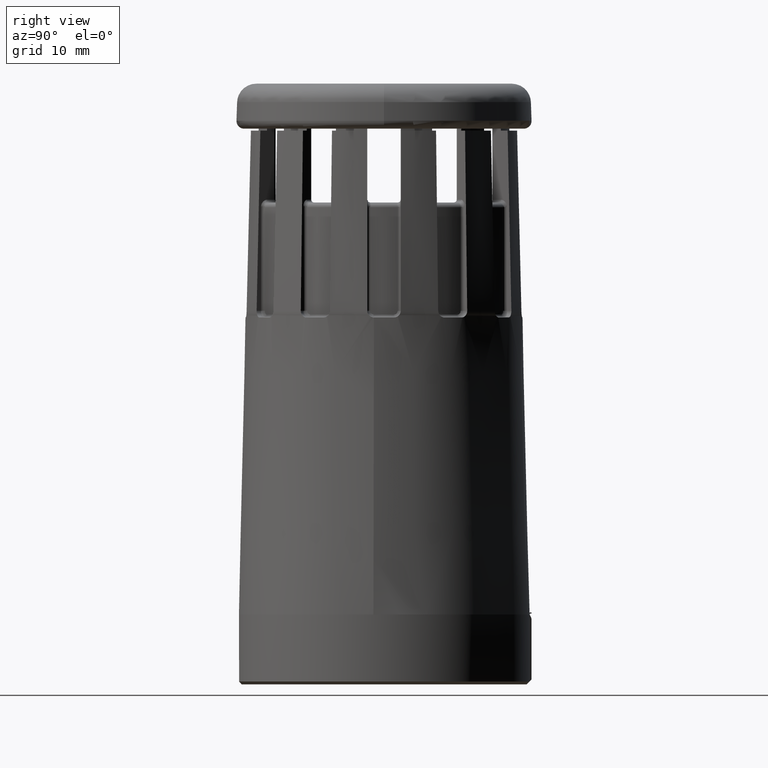
[diagram: clean part render]
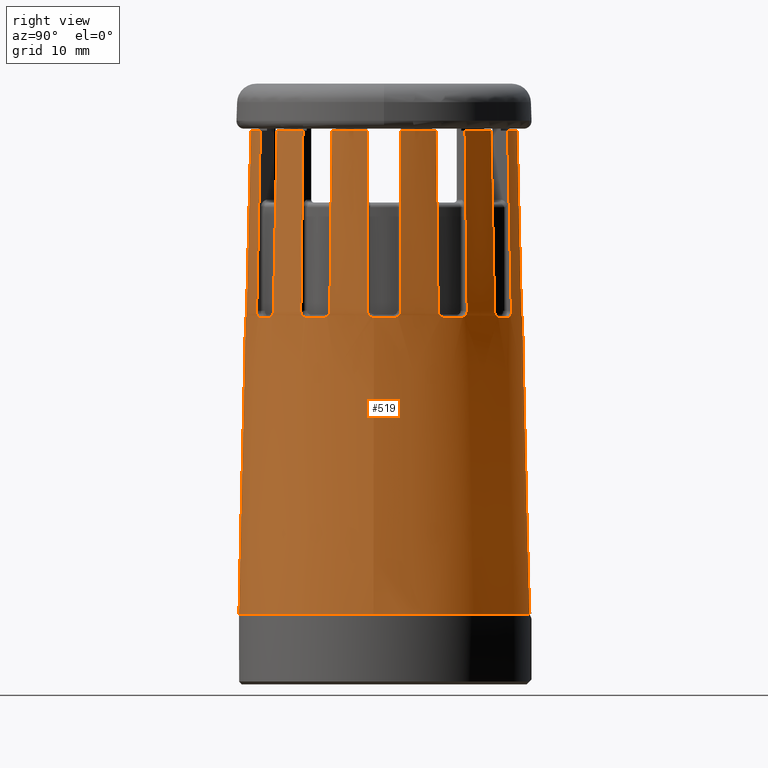
[diagram: same view with one face highlighted and labeled with its STEP entity id]
A machine part, right view. The second image highlights one B-rep face of the part: STEP entity #519.
In plain terms, the highlighted conical surface has half-angle 1.361 deg.
Its self-contained STEP definition (entity closure, byte-faithful):
#102=FACE_BOUND('',#1437,.T.);
#103=FACE_BOUND('',#1438,.T.);
#212=CONICAL_SURFACE('',#7414,14.6,1.36091757551645);
#319=(
BOUNDED_CURVE()
B_SPLINE_CURVE(2,(#10048,#10049,#10050),.UNSPECIFIED.,.F.,.F.)
B_SPLINE_CURVE_WITH_KNOTS((3,3),(0.,1.),.UNSPECIFIED.)
CURVE()
GEOMETRIC_REPRESENTATION_ITEM()
RATIONAL_B_SPLINE_CURVE((1.0000091687258,1.00012975879572,1.))
REPRESENTATION_ITEM('')
);
#320=(
BOUNDED_CURVE()
B_SPLINE_CURVE(2,(#10098,#10099,#10100),.UNSPECIFIED.,.F.,.F.)
B_SPLINE_CURVE_WITH_KNOTS((3,3),(0.,1.),.UNSPECIFIED.)
CURVE()
GEOMETRIC_REPRESENTATION_ITEM()
RATIONAL_B_SPLINE_CURVE((1.,1.00012975870704,1.00000916871954))
REPRESENTATION_ITEM('')
);
#323=(
BOUNDED_CURVE()
B_SPLINE_CURVE(2,(#10123,#10124,#10125),.UNSPECIFIED.,.F.,.F.)
B_SPLINE_CURVE_WITH_KNOTS((3,3),(0.,1.),.UNSPECIFIED.)
CURVE()
GEOMETRIC_REPRESENTATION_ITEM()
RATIONAL_B_SPLINE_CURVE((1.00000916872432,1.00012975877479,1.))
REPRESENTATION_ITEM('')
);
#324=(
BOUNDED_CURVE()
B_SPLINE_CURVE(2,(#10173,#10174,#10175),.UNSPECIFIED.,.F.,.F.)
B_SPLINE_CURVE_WITH_KNOTS((3,3),(0.,1.),.UNSPECIFIED.)
CURVE()
GEOMETRIC_REPRESENTATION_ITEM()
RATIONAL_B_SPLINE_CURVE((1.,1.00012975907931,1.00000916874584))
REPRESENTATION_ITEM('')
);
#327=(
BOUNDED_CURVE()
B_SPLINE_CURVE(2,(#10198,#10199,#10200),.UNSPECIFIED.,.F.,.F.)
B_SPLINE_CURVE_WITH_KNOTS((3,3),(0.,1.),.UNSPECIFIED.)
CURVE()
GEOMETRIC_REPRESENTATION_ITEM()
RATIONAL_B_SPLINE_CURVE((1.00000916872858,1.00012975883499,1.))
REPRESENTATION_ITEM('')
);
#328=(
BOUNDED_CURVE()
B_SPLINE_CURVE(2,(#10248,#10249,#10250),.UNSPECIFIED.,.F.,.F.)
B_SPLINE_CURVE_WITH_KNOTS((3,3),(0.,1.),.UNSPECIFIED.)
CURVE()
GEOMETRIC_REPRESENTATION_ITEM()
RATIONAL_B_SPLINE_CURVE((1.,1.00012975869552,1.00000916871872))
REPRESENTATION_ITEM('')
);
#331=(
BOUNDED_CURVE()
B_SPLINE_CURVE(2,(#10273,#10274,#10275),.UNSPECIFIED.,.F.,.F.)
B_SPLINE_CURVE_WITH_KNOTS((3,3),(0.,1.),.UNSPECIFIED.)
CURVE()
GEOMETRIC_REPRESENTATION_ITEM()
RATIONAL_B_SPLINE_CURVE((1.00000916871946,1.000129758706,1.))
REPRESENTATION_ITEM('')
);
#332=(
BOUNDED_CURVE()
B_SPLINE_CURVE(2,(#10323,#10324,#10325),.UNSPECIFIED.,.F.,.F.)
B_SPLINE_CURVE_WITH_KNOTS((3,3),(0.,1.),.UNSPECIFIED.)
CURVE()
GEOMETRIC_REPRESENTATION_ITEM()
RATIONAL_B_SPLINE_CURVE((1.,1.00012975886799,1.00000916873091))
REPRESENTATION_ITEM('')
);
#335=(
BOUNDED_CURVE()
B_SPLINE_CURVE(2,(#10348,#10349,#10350),.UNSPECIFIED.,.F.,.F.)
B_SPLINE_CURVE_WITH_KNOTS((3,3),(0.,1.),.UNSPECIFIED.)
CURVE()
GEOMETRIC_REPRESENTATION_ITEM()
RATIONAL_B_SPLINE_CURVE((1.00000916874068,1.00012975900624,1.))
REPRESENTATION_ITEM('')
);
#336=(
BOUNDED_CURVE()
B_SPLINE_CURVE(2,(#10398,#10399,#10400),.UNSPECIFIED.,.F.,.F.)
B_SPLINE_CURVE_WITH_KNOTS((3,3),(0.,1.),.UNSPECIFIED.)
CURVE()
GEOMETRIC_REPRESENTATION_ITEM()
RATIONAL_B_SPLINE_CURVE((1.,1.0001297589489,1.00000916873662))
REPRESENTATION_ITEM('')
);
#339=(
BOUNDED_CURVE()
B_SPLINE_CURVE(2,(#10423,#10424,#10425),.UNSPECIFIED.,.F.,.F.)
B_SPLINE_CURVE_WITH_KNOTS((3,3),(0.,1.),.UNSPECIFIED.)
CURVE()
GEOMETRIC_REPRESENTATION_ITEM()
RATIONAL_B_SPLINE_CURVE((1.00000916872947,1.0001297588476,1.))
REPRESENTATION_ITEM('')
);
#340=(
BOUNDED_CURVE()
B_SPLINE_CURVE(2,(#10473,#10474,#10475),.UNSPECIFIED.,.F.,.F.)
B_SPLINE_CURVE_WITH_KNOTS((3,3),(0.,1.),.UNSPECIFIED.)
CURVE()
GEOMETRIC_REPRESENTATION_ITEM()
RATIONAL_B_SPLINE_CURVE((1.,1.00012975875833,1.00000916872316))
REPRESENTATION_ITEM('')
);
#343=(
BOUNDED_CURVE()
B_SPLINE_CURVE(2,(#10498,#10499,#10500),.UNSPECIFIED.,.F.,.F.)
B_SPLINE_CURVE_WITH_KNOTS((3,3),(0.,1.),.UNSPECIFIED.)
CURVE()
GEOMETRIC_REPRESENTATION_ITEM()
RATIONAL_B_SPLINE_CURVE((1.00000916871947,1.00012975870608,1.))
REPRESENTATION_ITEM('')
);
#345=(
BOUNDED_CURVE()
B_SPLINE_CURVE(2,(#10534,#10535,#10536),.UNSPECIFIED.,.F.,.F.)
B_SPLINE_CURVE_WITH_KNOTS((3,3),(0.,1.),.UNSPECIFIED.)
CURVE()
GEOMETRIC_REPRESENTATION_ITEM()
RATIONAL_B_SPLINE_CURVE((1.00000916873088,1.0001297588676,1.))
REPRESENTATION_ITEM('')
);
#346=(
BOUNDED_CURVE()
B_SPLINE_CURVE(2,(#10581,#10582,#10583),.UNSPECIFIED.,.F.,.F.)
B_SPLINE_CURVE_WITH_KNOTS((3,3),(0.,1.),.UNSPECIFIED.)
CURVE()
GEOMETRIC_REPRESENTATION_ITEM()
RATIONAL_B_SPLINE_CURVE((1.,1.00012975876864,1.00000916872389))
REPRESENTATION_ITEM('')
);
#349=(
BOUNDED_CURVE()
B_SPLINE_CURVE(2,(#10606,#10607,#10608),.UNSPECIFIED.,.F.,.F.)
B_SPLINE_CURVE_WITH_KNOTS((3,3),(0.,1.),.UNSPECIFIED.)
CURVE()
GEOMETRIC_REPRESENTATION_ITEM()
RATIONAL_B_SPLINE_CURVE((1.00000916873123,1.00012975887258,1.))
REPRESENTATION_ITEM('')
);
#350=(
BOUNDED_CURVE()
B_SPLINE_CURVE(2,(#10653,#10654,#10655),.UNSPECIFIED.,.F.,.F.)
B_SPLINE_CURVE_WITH_KNOTS((3,3),(0.,1.),.UNSPECIFIED.)
CURVE()
GEOMETRIC_REPRESENTATION_ITEM()
RATIONAL_B_SPLINE_CURVE((1.,1.00012975879558,1.00000916872579))
REPRESENTATION_ITEM('')
);
#353=(
BOUNDED_CURVE()
B_SPLINE_CURVE(2,(#10678,#10679,#10680),.UNSPECIFIED.,.F.,.F.)
B_SPLINE_CURVE_WITH_KNOTS((3,3),(0.,1.),.UNSPECIFIED.)
CURVE()
GEOMETRIC_REPRESENTATION_ITEM()
RATIONAL_B_SPLINE_CURVE((1.00000916873484,1.0001297589237,1.))
REPRESENTATION_ITEM('')
);
#354=(
BOUNDED_CURVE()
B_SPLINE_CURVE(2,(#10725,#10726,#10727),.UNSPECIFIED.,.F.,.F.)
B_SPLINE_CURVE_WITH_KNOTS((3,3),(0.,1.),.UNSPECIFIED.)
CURVE()
GEOMETRIC_REPRESENTATION_ITEM()
RATIONAL_B_SPLINE_CURVE((1.,1.0001297586685,1.00000916871681))
REPRESENTATION_ITEM('')
);
#357=(
BOUNDED_CURVE()
B_SPLINE_CURVE(2,(#10750,#10751,#10752),.UNSPECIFIED.,.F.,.F.)
B_SPLINE_CURVE_WITH_KNOTS((3,3),(0.,1.),.UNSPECIFIED.)
CURVE()
GEOMETRIC_REPRESENTATION_ITEM()
RATIONAL_B_SPLINE_CURVE((1.00000916871922,1.0001297587026,1.))
REPRESENTATION_ITEM('')
);
#359=(
BOUNDED_CURVE()
B_SPLINE_CURVE(2,(#10786,#10787,#10788),.UNSPECIFIED.,.F.,.F.)
B_SPLINE_CURVE_WITH_KNOTS((3,3),(0.,1.),.UNSPECIFIED.)
CURVE()
GEOMETRIC_REPRESENTATION_ITEM()
RATIONAL_B_SPLINE_CURVE((1.00000916872675,1.00012975880921,1.))
REPRESENTATION_ITEM('')
);
#360=(
BOUNDED_CURVE()
B_SPLINE_CURVE(2,(#10833,#10834,#10835),.UNSPECIFIED.,.F.,.F.)
B_SPLINE_CURVE_WITH_KNOTS((3,3),(0.,1.),.UNSPECIFIED.)
CURVE()
GEOMETRIC_REPRESENTATION_ITEM()
RATIONAL_B_SPLINE_CURVE((1.,1.00012975865547,1.00000916871589))
REPRESENTATION_ITEM('')
);
#388=(
BOUNDED_CURVE()
B_SPLINE_CURVE(2,(#11568,#11569,#11570),.UNSPECIFIED.,.F.,.F.)
B_SPLINE_CURVE_WITH_KNOTS((3,3),(0.,1.),.UNSPECIFIED.)
CURVE()
GEOMETRIC_REPRESENTATION_ITEM()
RATIONAL_B_SPLINE_CURVE((1.,1.00012975892844,1.00000916873518))
REPRESENTATION_ITEM('')
);
#389=(
BOUNDED_CURVE()
B_SPLINE_CURVE(2,(#11599,#11600,#11601),.UNSPECIFIED.,.F.,.F.)
B_SPLINE_CURVE_WITH_KNOTS((3,3),(0.,1.),.UNSPECIFIED.)
CURVE()
GEOMETRIC_REPRESENTATION_ITEM()
RATIONAL_B_SPLINE_CURVE((1.,1.00012975863052,1.00000916871413))
REPRESENTATION_ITEM('')
);
#519=ADVANCED_FACE('',(#102,#103),#212,.T.);
#1437=EDGE_LOOP('',(#3097,#3098));
#1438=EDGE_LOOP('',(#3099,#3100,#3101,#3102,#3103,#3104,#3105,#3106,#3107,
#3108,#3109,#3110,#3111,#3112,#3113,#3114,#3115,#3116,#3117,#3118,#3119,
#3120,#3121,#3122,#3123,#3124,#3125,#3126,#3127,#3128,#3129,#3130,#3131,
#3132,#3133,#3134,#3135,#3136,#3137,#3138,#3139,#3140,#3141,#3142,#3143,
#3144,#3145,#3146,#3147,#3148,#3149,#3150,#3151,#3152,#3153,#3154,#3155,
#3156,#3157,#3158,#3159,#3160,#3161,#3162,#3163,#3164,#3165,#3166,#3167,
#3168,#3169,#3170));
#1826=CIRCLE('',#7382,15.2);
#1827=CIRCLE('',#7389,15.2);
#1828=CIRCLE('',#7390,14.4632607287788);
#1829=CIRCLE('',#7391,14.);
#1830=CIRCLE('',#7392,14.4632607287788);
#1831=CIRCLE('',#7393,14.);
#1832=CIRCLE('',#7394,14.4632607287788);
#1833=CIRCLE('',#7395,14.);
#1834=CIRCLE('',#7396,14.4632607287788);
#1835=CIRCLE('',#7397,14.);
#1836=CIRCLE('',#7398,14.4632607287788);
#1837=CIRCLE('',#7399,14.);
#1838=CIRCLE('',#7400,14.4632607287788);
#1839=CIRCLE('',#7401,14.);
#1840=CIRCLE('',#7402,14.4632607287788);
#1841=CIRCLE('',#7403,14.);
#1842=CIRCLE('',#7404,14.4632607287788);
#1843=CIRCLE('',#7405,14.);
#1844=CIRCLE('',#7406,14.4632607287788);
#1845=CIRCLE('',#7407,14.);
#1846=CIRCLE('',#7408,14.4632607287788);
#1847=CIRCLE('',#7409,14.);
#1848=CIRCLE('',#7410,14.4632607287788);
#1849=CIRCLE('',#7411,14.);
#1850=CIRCLE('',#7412,14.4632607287788);
#1851=CIRCLE('',#7413,14.);
#2148=B_SPLINE_CURVE_WITH_KNOTS('',3,(#11690,#11691,#11692,#11693,#11694,
#11695,#11696,#11697,#11698,#11699,#11700,#11701,#11702,#11703,#11704,#11705,
#11706,#11707,#11708),.UNSPECIFIED.,.F.,.F.,(4,3,3,3,3,3,4),(0.,0.213835099467739,
0.427594788446864,0.499517273520278,0.715732940413993,0.931966233927127,
1.),.UNSPECIFIED.);
#2153=B_SPLINE_CURVE_WITH_KNOTS('',3,(#11750,#11751,#11752,#11753,#11754,
#11755,#11756,#11757,#11758,#11759,#11760,#11761,#11762,#11763,#11764,#11765,
#11766,#11767,#11768),.UNSPECIFIED.,.F.,.F.,(4,3,3,3,3,3,4),(0.,0.215746337173847,
0.431449424683527,0.500450815619938,0.715471633319199,0.930571949269777,
1.),.UNSPECIFIED.);
#2154=B_SPLINE_CURVE_WITH_KNOTS('',3,(#11770,#11771,#11772,#11773,#11774,
#11775,#11776,#11777,#11778,#11779,#11780,#11781,#11782,#11783,#11784,#11785,
#11786,#11787,#11788),.UNSPECIFIED.,.F.,.F.,(4,3,3,3,3,3,4),(0.,0.213835099467736,
0.427594788446864,0.499517273520275,0.715732940413992,0.931966233927124,
1.),.UNSPECIFIED.);
#2159=B_SPLINE_CURVE_WITH_KNOTS('',3,(#11830,#11831,#11832,#11833,#11834,
#11835,#11836,#11837,#11838,#11839,#11840,#11841,#11842,#11843,#11844,#11845,
#11846,#11847,#11848),.UNSPECIFIED.,.F.,.F.,(4,3,3,3,3,3,4),(0.,0.215746337173846,
0.431449424683529,0.500450815619941,0.7154716333192,0.930571949269776,1.),
 .UNSPECIFIED.);
#2160=B_SPLINE_CURVE_WITH_KNOTS('',3,(#11854,#11855,#11856,#11857,#11858,
#11859,#11860,#11861,#11862,#11863,#11864,#11865,#11866,#11867,#11868,#11869,
#11870,#11871,#11872),.UNSPECIFIED.,.F.,.F.,(4,3,3,3,3,3,4),(0.,0.213835099467739,
0.427594788446864,0.499517273520276,0.715732940413993,0.931966233927126,
1.),.UNSPECIFIED.);
#2161=B_SPLINE_CURVE_WITH_KNOTS('',3,(#11874,#11875,#11876,#11877,#11878,
#11879,#11880,#11881,#11882,#11883,#11884,#11885,#11886,#11887,#11888,#11889,
#11890,#11891,#11892),.UNSPECIFIED.,.F.,.F.,(4,3,3,3,3,3,4),(0.,0.215746337173846,
0.431449424683528,0.50045081561994,0.715471633319201,0.93057194926978,1.),
 .UNSPECIFIED.);
#2162=B_SPLINE_CURVE_WITH_KNOTS('',3,(#11896,#11897,#11898,#11899,#11900,
#11901,#11902,#11903,#11904,#11905,#11906,#11907,#11908,#11909,#11910,#11911,
#11912,#11913,#11914),.UNSPECIFIED.,.F.,.F.,(4,3,3,3,3,3,4),(0.,0.21383509946774,
0.427594788446866,0.49951727352028,0.715732940413994,0.931966233927128,
1.),.UNSPECIFIED.);
#2163=B_SPLINE_CURVE_WITH_KNOTS('',3,(#11920,#11921,#11922,#11923,#11924,
#11925,#11926,#11927,#11928,#11929,#11930,#11931,#11932,#11933,#11934,#11935,
#11936,#11937,#11938),.UNSPECIFIED.,.F.,.F.,(4,3,3,3,3,3,4),(0.,0.215746337173847,
0.431449424683528,0.500450815619938,0.7154716333192,0.930571949269776,1.),
 .UNSPECIFIED.);
#2164=B_SPLINE_CURVE_WITH_KNOTS('',3,(#11942,#11943,#11944,#11945,#11946,
#11947,#11948,#11949,#11950,#11951,#11952,#11953,#11954,#11955,#11956,#11957,
#11958,#11959,#11960),.UNSPECIFIED.,.F.,.F.,(4,3,3,3,3,3,4),(0.,0.213835099467738,
0.427594788446862,0.499517273520276,0.715732940413991,0.931966233927124,
1.),.UNSPECIFIED.);
#2165=B_SPLINE_CURVE_WITH_KNOTS('',3,(#11962,#11963,#11964,#11965,#11966,
#11967,#11968,#11969,#11970,#11971,#11972,#11973,#11974,#11975,#11976,#11977,
#11978,#11979,#11980),.UNSPECIFIED.,.F.,.F.,(4,3,3,3,3,3,4),(0.,0.215746337173848,
0.43144942468353,0.500450815619944,0.715471633319206,0.930571949269779,
1.),.UNSPECIFIED.);
#2166=B_SPLINE_CURVE_WITH_KNOTS('',3,(#11984,#11985,#11986,#11987,#11988,
#11989,#11990,#11991,#11992,#11993,#11994,#11995,#11996,#11997,#11998,#11999,
#12000,#12001,#12002),.UNSPECIFIED.,.F.,.F.,(4,3,3,3,3,3,4),(0.,0.213835099467739,
0.427594788446864,0.499517273520275,0.715732940413993,0.931966233927125,
1.),.UNSPECIFIED.);
#2167=B_SPLINE_CURVE_WITH_KNOTS('',3,(#12004,#12005,#12006,#12007,#12008,
#12009,#12010,#12011,#12012,#12013,#12014,#12015,#12016,#12017,#12018,#12019,
#12020,#12021,#12022),.UNSPECIFIED.,.F.,.F.,(4,3,3,3,3,3,4),(0.,0.215746337173844,
0.431449424683525,0.500450815619941,0.7154716333192,0.930571949269779,1.),
 .UNSPECIFIED.);
#2168=B_SPLINE_CURVE_WITH_KNOTS('',3,(#12026,#12027,#12028,#12029,#12030,
#12031,#12032,#12033,#12034,#12035,#12036,#12037,#12038,#12039,#12040,#12041,
#12042,#12043,#12044),.UNSPECIFIED.,.F.,.F.,(4,3,3,3,3,3,4),(0.,0.213835099467736,
0.427594788446862,0.499517273520275,0.715732940413992,0.931966233927126,
1.),.UNSPECIFIED.);
#2169=B_SPLINE_CURVE_WITH_KNOTS('',3,(#12046,#12047,#12048,#12049,#12050,
#12051,#12052,#12053,#12054,#12055,#12056,#12057,#12058,#12059,#12060,#12061,
#12062,#12063,#12064),.UNSPECIFIED.,.F.,.F.,(4,3,3,3,3,3,4),(0.,0.215746337173878,
0.431449424683591,0.500450815620014,0.715471633319537,0.930571949270404,
1.),.UNSPECIFIED.);
#2170=B_SPLINE_CURVE_WITH_KNOTS('',3,(#12068,#12069,#12070,#12071,#12072,
#12073,#12074,#12075,#12076,#12077,#12078,#12079,#12080,#12081,#12082,#12083,
#12084,#12085,#12086),.UNSPECIFIED.,.F.,.F.,(4,3,3,3,3,3,4),(0.,0.213835099467738,
0.427594788446863,0.499517273520279,0.715732940413992,0.931966233927125,
1.),.UNSPECIFIED.);
#2171=B_SPLINE_CURVE_WITH_KNOTS('',3,(#12088,#12089,#12090,#12091,#12092,
#12093,#12094,#12095,#12096,#12097,#12098,#12099,#12100,#12101,#12102,#12103,
#12104,#12105,#12106),.UNSPECIFIED.,.F.,.F.,(4,3,3,3,3,3,4),(0.,0.215746337173846,
0.43144942468353,0.500450815619939,0.715471633319203,0.930571949269779,
1.),.UNSPECIFIED.);
#2172=B_SPLINE_CURVE_WITH_KNOTS('',3,(#12110,#12111,#12112,#12113,#12114,
#12115,#12116,#12117,#12118,#12119,#12120,#12121,#12122,#12123,#12124,#12125,
#12126,#12127,#12128),.UNSPECIFIED.,.F.,.F.,(4,3,3,3,3,3,4),(0.,0.213835099467739,
0.427594788446865,0.499517273520278,0.715732940413995,0.931966233927128,
1.),.UNSPECIFIED.);
#2173=B_SPLINE_CURVE_WITH_KNOTS('',3,(#12130,#12131,#12132,#12133,#12134,
#12135,#12136,#12137,#12138,#12139,#12140,#12141,#12142,#12143,#12144,#12145,
#12146,#12147,#12148),.UNSPECIFIED.,.F.,.F.,(4,3,3,3,3,3,4),(0.,0.215746337173846,
0.431449424683527,0.500450815619938,0.7154716333192,0.930571949269776,1.),
 .UNSPECIFIED.);
#2174=B_SPLINE_CURVE_WITH_KNOTS('',3,(#12152,#12153,#12154,#12155,#12156,
#12157,#12158,#12159,#12160,#12161,#12162,#12163,#12164,#12165,#12166,#12167,
#12168,#12169,#12170),.UNSPECIFIED.,.F.,.F.,(4,3,3,3,3,3,4),(0.,0.213835099467739,
0.427594788446864,0.499517273520277,0.715732940413992,0.931966233927124,
1.),.UNSPECIFIED.);
#2175=B_SPLINE_CURVE_WITH_KNOTS('',3,(#12172,#12173,#12174,#12175,#12176,
#12177,#12178,#12179,#12180,#12181,#12182,#12183,#12184,#12185,#12186,#12187,
#12188,#12189,#12190),.UNSPECIFIED.,.F.,.F.,(4,3,3,3,3,3,4),(0.,0.215746337173878,
0.431449424683592,0.500450815620016,0.715471633319537,0.930571949270403,
1.),.UNSPECIFIED.);
#2176=B_SPLINE_CURVE_WITH_KNOTS('',3,(#12194,#12195,#12196,#12197,#12198,
#12199,#12200,#12201,#12202,#12203,#12204,#12205,#12206,#12207,#12208,#12209,
#12210,#12211,#12212),.UNSPECIFIED.,.F.,.F.,(4,3,3,3,3,3,4),(0.,0.213835099467736,
0.427594788446863,0.499517273520276,0.715732940413991,0.931966233927122,
1.),.UNSPECIFIED.);
#2177=B_SPLINE_CURVE_WITH_KNOTS('',3,(#12214,#12215,#12216,#12217,#12218,
#12219,#12220,#12221,#12222,#12223,#12224,#12225,#12226,#12227,#12228,#12229,
#12230,#12231,#12232),.UNSPECIFIED.,.F.,.F.,(4,3,3,3,3,3,4),(0.,0.215746337173843,
0.431449424683526,0.500450815619939,0.715471633319199,0.930571949269779,
1.),.UNSPECIFIED.);
#2178=B_SPLINE_CURVE_WITH_KNOTS('',3,(#12236,#12237,#12238,#12239,#12240,
#12241,#12242,#12243,#12244,#12245,#12246,#12247,#12248,#12249,#12250,#12251,
#12252,#12253,#12254),.UNSPECIFIED.,.F.,.F.,(4,3,3,3,3,3,4),(0.,0.213835099467706,
0.427594788446798,0.499517273520199,0.715732940413645,0.931966233926481,
1.),.UNSPECIFIED.);
#2179=B_SPLINE_CURVE_WITH_KNOTS('',3,(#12256,#12257,#12258,#12259,#12260,
#12261,#12262,#12263,#12264,#12265,#12266,#12267,#12268,#12269,#12270,#12271,
#12272,#12273,#12274),.UNSPECIFIED.,.F.,.F.,(4,3,3,3,3,3,4),(0.,0.215746337173845,
0.431449424683527,0.500450815619939,0.715471633319199,0.930571949269776,
1.),.UNSPECIFIED.);
#3097=ORIENTED_EDGE('',*,*,#5910,.F.);
#3098=ORIENTED_EDGE('',*,*,#5929,.F.);
#3099=ORIENTED_EDGE('',*,*,#5930,.T.);
#3100=ORIENTED_EDGE('',*,*,#5931,.F.);
#3101=ORIENTED_EDGE('',*,*,#5671,.T.);
#3102=ORIENTED_EDGE('',*,*,#5932,.T.);
#3103=ORIENTED_EDGE('',*,*,#5887,.T.);
#3104=ORIENTED_EDGE('',*,*,#5933,.F.);
#3105=ORIENTED_EDGE('',*,*,#5934,.T.);
#3106=ORIENTED_EDGE('',*,*,#5935,.F.);
#3107=ORIENTED_EDGE('',*,*,#5689,.T.);
#3108=ORIENTED_EDGE('',*,*,#5936,.T.);
#3109=ORIENTED_EDGE('',*,*,#5895,.T.);
#3110=ORIENTED_EDGE('',*,*,#5928,.F.);
#3111=ORIENTED_EDGE('',*,*,#5937,.T.);
#3112=ORIENTED_EDGE('',*,*,#5921,.F.);
#3113=ORIENTED_EDGE('',*,*,#5698,.T.);
#3114=ORIENTED_EDGE('',*,*,#5938,.T.);
#3115=ORIENTED_EDGE('',*,*,#5708,.T.);
#3116=ORIENTED_EDGE('',*,*,#5920,.F.);
#3117=ORIENTED_EDGE('',*,*,#5939,.T.);
#3118=ORIENTED_EDGE('',*,*,#5913,.F.);
#3119=ORIENTED_EDGE('',*,*,#5506,.T.);
#3120=ORIENTED_EDGE('',*,*,#5940,.T.);
#3121=ORIENTED_EDGE('',*,*,#5518,.T.);
#3122=ORIENTED_EDGE('',*,*,#5941,.F.);
#3123=ORIENTED_EDGE('',*,*,#5942,.T.);
#3124=ORIENTED_EDGE('',*,*,#5943,.F.);
#3125=ORIENTED_EDGE('',*,*,#5526,.T.);
#3126=ORIENTED_EDGE('',*,*,#5944,.T.);
#3127=ORIENTED_EDGE('',*,*,#5538,.T.);
#3128=ORIENTED_EDGE('',*,*,#5945,.F.);
#3129=ORIENTED_EDGE('',*,*,#5946,.T.);
#3130=ORIENTED_EDGE('',*,*,#5947,.F.);
#3131=ORIENTED_EDGE('',*,*,#5546,.T.);
#3132=ORIENTED_EDGE('',*,*,#5948,.T.);
#3133=ORIENTED_EDGE('',*,*,#5558,.T.);
#3134=ORIENTED_EDGE('',*,*,#5949,.F.);
#3135=ORIENTED_EDGE('',*,*,#5950,.T.);
#3136=ORIENTED_EDGE('',*,*,#5951,.F.);
#3137=ORIENTED_EDGE('',*,*,#5566,.T.);
#3138=ORIENTED_EDGE('',*,*,#5952,.T.);
#3139=ORIENTED_EDGE('',*,*,#5578,.T.);
#3140=ORIENTED_EDGE('',*,*,#5953,.F.);
#3141=ORIENTED_EDGE('',*,*,#5954,.T.);
#3142=ORIENTED_EDGE('',*,*,#5955,.F.);
#3143=ORIENTED_EDGE('',*,*,#5586,.T.);
#3144=ORIENTED_EDGE('',*,*,#5956,.T.);
#3145=ORIENTED_EDGE('',*,*,#5598,.T.);
#3146=ORIENTED_EDGE('',*,*,#5957,.F.);
#3147=ORIENTED_EDGE('',*,*,#5958,.T.);
#3148=ORIENTED_EDGE('',*,*,#5959,.F.);
#3149=ORIENTED_EDGE('',*,*,#5606,.T.);
#3150=ORIENTED_EDGE('',*,*,#5960,.T.);
#3151=ORIENTED_EDGE('',*,*,#5618,.T.);
#3152=ORIENTED_EDGE('',*,*,#5961,.F.);
#3153=ORIENTED_EDGE('',*,*,#5962,.T.);
#3154=ORIENTED_EDGE('',*,*,#5963,.F.);
#3155=ORIENTED_EDGE('',*,*,#5626,.T.);
#3156=ORIENTED_EDGE('',*,*,#5964,.T.);
#3157=ORIENTED_EDGE('',*,*,#5645,.T.);
#3158=ORIENTED_EDGE('',*,*,#5965,.F.);
#3159=ORIENTED_EDGE('',*,*,#5966,.T.);
#3160=ORIENTED_EDGE('',*,*,#5967,.F.);
#3161=ORIENTED_EDGE('',*,*,#5635,.T.);
#3162=ORIENTED_EDGE('',*,*,#5968,.T.);
#3163=ORIENTED_EDGE('',*,*,#5663,.T.);
#3164=ORIENTED_EDGE('',*,*,#5969,.F.);
#3165=ORIENTED_EDGE('',*,*,#5970,.T.);
#3166=ORIENTED_EDGE('',*,*,#5971,.F.);
#3167=ORIENTED_EDGE('',*,*,#5653,.T.);
#3168=ORIENTED_EDGE('',*,*,#5972,.T.);
#3169=ORIENTED_EDGE('',*,*,#5681,.T.);
#3170=ORIENTED_EDGE('',*,*,#5973,.F.);
#4771=VERTEX_POINT('',#10047);
#4772=VERTEX_POINT('',#10051);
#4780=VERTEX_POINT('',#10097);
#4781=VERTEX_POINT('',#10101);
#4787=VERTEX_POINT('',#10122);
#4788=VERTEX_POINT('',#10126);
#4796=VERTEX_POINT('',#10172);
#4797=VERTEX_POINT('',#10176);
#4803=VERTEX_POINT('',#10197);
#4804=VERTEX_POINT('',#10201);
#4812=VERTEX_POINT('',#10247);
#4813=VERTEX_POINT('',#10251);
#4819=VERTEX_POINT('',#10272);
#4820=VERTEX_POINT('',#10276);
#4828=VERTEX_POINT('',#10322);
#4829=VERTEX_POINT('',#10326);
#4835=VERTEX_POINT('',#10347);
#4836=VERTEX_POINT('',#10351);
#4844=VERTEX_POINT('',#10397);
#4845=VERTEX_POINT('',#10401);
#4851=VERTEX_POINT('',#10422);
#4852=VERTEX_POINT('',#10426);
#4860=VERTEX_POINT('',#10472);
#4861=VERTEX_POINT('',#10476);
#4867=VERTEX_POINT('',#10497);
#4868=VERTEX_POINT('',#10501);
#4875=VERTEX_POINT('',#10533);
#4876=VERTEX_POINT('',#10537);
#4884=VERTEX_POINT('',#10580);
#4885=VERTEX_POINT('',#10584);
#4891=VERTEX_POINT('',#10605);
#4892=VERTEX_POINT('',#10609);
#4900=VERTEX_POINT('',#10652);
#4901=VERTEX_POINT('',#10656);
#4907=VERTEX_POINT('',#10677);
#4908=VERTEX_POINT('',#10681);
#4916=VERTEX_POINT('',#10724);
#4917=VERTEX_POINT('',#10728);
#4923=VERTEX_POINT('',#10749);
#4924=VERTEX_POINT('',#10753);
#4931=VERTEX_POINT('',#10785);
#4932=VERTEX_POINT('',#10789);
#4940=VERTEX_POINT('',#10832);
#4941=VERTEX_POINT('',#10836);
#5047=VERTEX_POINT('',#11567);
#5048=VERTEX_POINT('',#11571);
#5053=VERTEX_POINT('',#11598);
#5054=VERTEX_POINT('',#11602);
#5066=VERTEX_POINT('',#11677);
#5067=VERTEX_POINT('',#11679);
#5069=VERTEX_POINT('',#11709);
#5074=VERTEX_POINT('',#11749);
#5075=VERTEX_POINT('',#11789);
#5080=VERTEX_POINT('',#11829);
#5081=VERTEX_POINT('',#11852);
#5082=VERTEX_POINT('',#11853);
#5083=VERTEX_POINT('',#11893);
#5084=VERTEX_POINT('',#11895);
#5085=VERTEX_POINT('',#11939);
#5086=VERTEX_POINT('',#11941);
#5087=VERTEX_POINT('',#11981);
#5088=VERTEX_POINT('',#11983);
#5089=VERTEX_POINT('',#12023);
#5090=VERTEX_POINT('',#12025);
#5091=VERTEX_POINT('',#12065);
#5092=VERTEX_POINT('',#12067);
#5093=VERTEX_POINT('',#12107);
#5094=VERTEX_POINT('',#12109);
#5095=VERTEX_POINT('',#12149);
#5096=VERTEX_POINT('',#12151);
#5097=VERTEX_POINT('',#12191);
#5098=VERTEX_POINT('',#12193);
#5099=VERTEX_POINT('',#12233);
#5100=VERTEX_POINT('',#12235);
#5506=EDGE_CURVE('',#4772,#4771,#319,.T.);
#5518=EDGE_CURVE('',#4781,#4780,#320,.T.);
#5526=EDGE_CURVE('',#4788,#4787,#323,.T.);
#5538=EDGE_CURVE('',#4797,#4796,#324,.T.);
#5546=EDGE_CURVE('',#4804,#4803,#327,.T.);
#5558=EDGE_CURVE('',#4813,#4812,#328,.T.);
#5566=EDGE_CURVE('',#4820,#4819,#331,.T.);
#5578=EDGE_CURVE('',#4829,#4828,#332,.T.);
#5586=EDGE_CURVE('',#4836,#4835,#335,.T.);
#5598=EDGE_CURVE('',#4845,#4844,#336,.T.);
#5606=EDGE_CURVE('',#4852,#4851,#339,.T.);
#5618=EDGE_CURVE('',#4861,#4860,#340,.T.);
#5626=EDGE_CURVE('',#4868,#4867,#343,.T.);
#5635=EDGE_CURVE('',#4876,#4875,#345,.T.);
#5645=EDGE_CURVE('',#4885,#4884,#346,.T.);
#5653=EDGE_CURVE('',#4892,#4891,#349,.T.);
#5663=EDGE_CURVE('',#4901,#4900,#350,.T.);
#5671=EDGE_CURVE('',#4908,#4907,#353,.T.);
#5681=EDGE_CURVE('',#4917,#4916,#354,.T.);
#5689=EDGE_CURVE('',#4924,#4923,#357,.T.);
#5698=EDGE_CURVE('',#4932,#4931,#359,.T.);
#5708=EDGE_CURVE('',#4941,#4940,#360,.T.);
#5887=EDGE_CURVE('',#5048,#5047,#388,.T.);
#5895=EDGE_CURVE('',#5054,#5053,#389,.T.);
#5910=EDGE_CURVE('',#5067,#5066,#1826,.T.);
#5913=EDGE_CURVE('',#4772,#5069,#2148,.T.);
#5920=EDGE_CURVE('',#5074,#4940,#2153,.T.);
#5921=EDGE_CURVE('',#4932,#5075,#2154,.T.);
#5928=EDGE_CURVE('',#5080,#5053,#2159,.T.);
#5929=EDGE_CURVE('',#5066,#5067,#1827,.T.);
#5930=EDGE_CURVE('',#5081,#5082,#1828,.T.);
#5931=EDGE_CURVE('',#4908,#5082,#2160,.T.);
#5932=EDGE_CURVE('',#4907,#5048,#1829,.T.);
#5933=EDGE_CURVE('',#5083,#5047,#2161,.T.);
#5934=EDGE_CURVE('',#5083,#5084,#1830,.T.);
#5935=EDGE_CURVE('',#4924,#5084,#2162,.T.);
#5936=EDGE_CURVE('',#4923,#5054,#1831,.T.);
#5937=EDGE_CURVE('',#5080,#5075,#1832,.T.);
#5938=EDGE_CURVE('',#4931,#4941,#1833,.T.);
#5939=EDGE_CURVE('',#5074,#5069,#1834,.T.);
#5940=EDGE_CURVE('',#4771,#4781,#1835,.T.);
#5941=EDGE_CURVE('',#5085,#4780,#2163,.T.);
#5942=EDGE_CURVE('',#5085,#5086,#1836,.T.);
#5943=EDGE_CURVE('',#4788,#5086,#2164,.T.);
#5944=EDGE_CURVE('',#4787,#4797,#1837,.T.);
#5945=EDGE_CURVE('',#5087,#4796,#2165,.T.);
#5946=EDGE_CURVE('',#5087,#5088,#1838,.T.);
#5947=EDGE_CURVE('',#4804,#5088,#2166,.T.);
#5948=EDGE_CURVE('',#4803,#4813,#1839,.T.);
#5949=EDGE_CURVE('',#5089,#4812,#2167,.T.);
#5950=EDGE_CURVE('',#5089,#5090,#1840,.T.);
#5951=EDGE_CURVE('',#4820,#5090,#2168,.T.);
#5952=EDGE_CURVE('',#4819,#4829,#1841,.T.);
#5953=EDGE_CURVE('',#5091,#4828,#2169,.T.);
#5954=EDGE_CURVE('',#5091,#5092,#1842,.T.);
#5955=EDGE_CURVE('',#4836,#5092,#2170,.T.);
#5956=EDGE_CURVE('',#4835,#4845,#1843,.T.);
#5957=EDGE_CURVE('',#5093,#4844,#2171,.T.);
#5958=EDGE_CURVE('',#5093,#5094,#1844,.T.);
#5959=EDGE_CURVE('',#4852,#5094,#2172,.T.);
#5960=EDGE_CURVE('',#4851,#4861,#1845,.T.);
#5961=EDGE_CURVE('',#5095,#4860,#2173,.T.);
#5962=EDGE_CURVE('',#5095,#5096,#1846,.T.);
#5963=EDGE_CURVE('',#4868,#5096,#2174,.T.);
#5964=EDGE_CURVE('',#4867,#4885,#1847,.T.);
#5965=EDGE_CURVE('',#5097,#4884,#2175,.T.);
#5966=EDGE_CURVE('',#5097,#5098,#1848,.T.);
#5967=EDGE_CURVE('',#4876,#5098,#2176,.T.);
#5968=EDGE_CURVE('',#4875,#4901,#1849,.T.);
#5969=EDGE_CURVE('',#5099,#4900,#2177,.T.);
#5970=EDGE_CURVE('',#5099,#5100,#1850,.T.);
#5971=EDGE_CURVE('',#4892,#5100,#2178,.T.);
#5972=EDGE_CURVE('',#4891,#4917,#1851,.T.);
#5973=EDGE_CURVE('',#5081,#4916,#2179,.T.);
#7382=AXIS2_PLACEMENT_3D('',#11680,#8470,#8471);
#7389=AXIS2_PLACEMENT_3D('',#11850,#8488,#8489);
#7390=AXIS2_PLACEMENT_3D('',#11851,#8490,#8491);
#7391=AXIS2_PLACEMENT_3D('',#11873,#8492,#8493);
#7392=AXIS2_PLACEMENT_3D('',#11894,#8494,#8495);
#7393=AXIS2_PLACEMENT_3D('',#11915,#8496,#8497);
#7394=AXIS2_PLACEMENT_3D('',#11916,#8498,#8499);
#7395=AXIS2_PLACEMENT_3D('',#11917,#8500,#8501);
#7396=AXIS2_PLACEMENT_3D('',#11918,#8502,#8503);
#7397=AXIS2_PLACEMENT_3D('',#11919,#8504,#8505);
#7398=AXIS2_PLACEMENT_3D('',#11940,#8506,#8507);
#7399=AXIS2_PLACEMENT_3D('',#11961,#8508,#8509);
#7400=AXIS2_PLACEMENT_3D('',#11982,#8510,#8511);
#7401=AXIS2_PLACEMENT_3D('',#12003,#8512,#8513);
#7402=AXIS2_PLACEMENT_3D('',#12024,#8514,#8515);
#7403=AXIS2_PLACEMENT_3D('',#12045,#8516,#8517);
#7404=AXIS2_PLACEMENT_3D('',#12066,#8518,#8519);
#7405=AXIS2_PLACEMENT_3D('',#12087,#8520,#8521);
#7406=AXIS2_PLACEMENT_3D('',#12108,#8522,#8523);
#7407=AXIS2_PLACEMENT_3D('',#12129,#8524,#8525);
#7408=AXIS2_PLACEMENT_3D('',#12150,#8526,#8527);
#7409=AXIS2_PLACEMENT_3D('',#12171,#8528,#8529);
#7410=AXIS2_PLACEMENT_3D('',#12192,#8530,#8531);
#7411=AXIS2_PLACEMENT_3D('',#12213,#8532,#8533);
#7412=AXIS2_PLACEMENT_3D('',#12234,#8534,#8535);
#7413=AXIS2_PLACEMENT_3D('',#12255,#8536,#8537);
#7414=AXIS2_PLACEMENT_3D('',#12275,#8538,#8539);
#8470=DIRECTION('',(0.,0.,-1.));
#8471=DIRECTION('',(1.,0.,0.));
#8488=DIRECTION('',(0.,0.,-1.));
#8489=DIRECTION('',(1.,0.,0.));
#8490=DIRECTION('',(0.,0.,-1.));
#8491=DIRECTION('',(-1.,0.,0.));
#8492=DIRECTION('',(0.,0.,-1.));
#8493=DIRECTION('',(1.,0.,0.));
#8494=DIRECTION('',(0.,0.,-1.));
#8495=DIRECTION('',(-1.,0.,0.));
#8496=DIRECTION('',(0.,0.,-1.));
#8497=DIRECTION('',(1.,0.,0.));
#8498=DIRECTION('',(0.,0.,-1.));
#8499=DIRECTION('',(-1.,0.,0.));
#8500=DIRECTION('',(0.,0.,-1.));
#8501=DIRECTION('',(1.,0.,0.));
#8502=DIRECTION('',(0.,0.,-1.));
#8503=DIRECTION('',(-1.,0.,0.));
#8504=DIRECTION('',(0.,0.,-1.));
#8505=DIRECTION('',(1.,0.,0.));
#8506=DIRECTION('',(0.,0.,-1.));
#8507=DIRECTION('',(-1.,0.,0.));
#8508=DIRECTION('',(0.,0.,-1.));
#8509=DIRECTION('',(1.,0.,0.));
#8510=DIRECTION('',(0.,0.,-1.));
#8511=DIRECTION('',(-1.,0.,0.));
#8512=DIRECTION('',(0.,0.,-1.));
#8513=DIRECTION('',(1.,0.,0.));
#8514=DIRECTION('',(0.,0.,-1.));
#8515=DIRECTION('',(-1.,0.,0.));
#8516=DIRECTION('',(0.,0.,-1.));
#8517=DIRECTION('',(1.,0.,0.));
#8518=DIRECTION('',(0.,0.,-1.));
#8519=DIRECTION('',(-1.,0.,0.));
#8520=DIRECTION('',(0.,0.,-1.));
#8521=DIRECTION('',(1.,0.,0.));
#8522=DIRECTION('',(0.,0.,-1.));
#8523=DIRECTION('',(-1.,0.,0.));
#8524=DIRECTION('',(0.,0.,-1.));
#8525=DIRECTION('',(1.,0.,0.));
#8526=DIRECTION('',(0.,0.,-1.));
#8527=DIRECTION('',(-1.,0.,0.));
#8528=DIRECTION('',(0.,0.,-1.));
#8529=DIRECTION('',(1.,0.,0.));
#8530=DIRECTION('',(0.,0.,-1.));
#8531=DIRECTION('',(-1.,0.,0.));
#8532=DIRECTION('',(0.,0.,-1.));
#8533=DIRECTION('',(1.,0.,0.));
#8534=DIRECTION('',(0.,0.,-1.));
#8535=DIRECTION('',(-1.,0.,0.));
#8536=DIRECTION('',(0.,0.,-1.));
#8537=DIRECTION('',(1.,0.,0.));
#8538=DIRECTION('',(-2.449213E-16,0.,-1.));
#8539=DIRECTION('',(1.,0.,-9.04515611047583E-16));
#10047=CARTESIAN_POINT('',(1.74999999999946,13.8901943830891,43.8));
#10048=CARTESIAN_POINT('',(1.74999999999946,14.3402455733131,25.));
#10049=CARTESIAN_POINT('',(1.74999999999946,14.1116869280221,34.5498553048865));
#10050=CARTESIAN_POINT('',(1.74999999999946,13.890194383089,43.8));
#10051=CARTESIAN_POINT('',(1.74999999999946,14.3402455733131,25.));
#10097=CARTESIAN_POINT('',(5.65457833003314,13.2940169629967,25.));
#10098=CARTESIAN_POINT('',(5.42955273492112,12.9042611992592,43.8));
#10099=CARTESIAN_POINT('',(5.54029900738484,13.0960793699153,34.5498553051208));
#10100=CARTESIAN_POINT('',(5.65457833003314,13.2940169629967,25.));
#10101=CARTESIAN_POINT('',(5.42955273492113,12.9042611992593,43.8));
#10122=CARTESIAN_POINT('',(8.46064164816675,11.1542611992594,43.8));
#10123=CARTESIAN_POINT('',(8.68566724327877,11.5440169629969,25.));
#10124=CARTESIAN_POINT('',(8.57138792063204,11.3460793699182,34.5498553049895));
#10125=CARTESIAN_POINT('',(8.46064164816675,11.1542611992594,43.8));
#10126=CARTESIAN_POINT('',(8.68566724327877,11.5440169629969,25.));
#10172=CARTESIAN_POINT('',(11.5440169629961,8.6856672432798,25.));
#10173=CARTESIAN_POINT('',(11.1542611992587,8.46064164816776,43.8));
#10174=CARTESIAN_POINT('',(11.3460793699239,8.57138792063683,34.5498553046748));
#10175=CARTESIAN_POINT('',(11.5440169629961,8.6856672432798,25.));
#10176=CARTESIAN_POINT('',(11.1542611992587,8.46064164816777,43.8));
#10197=CARTESIAN_POINT('',(12.9042611992588,5.42955273492232,43.8));
#10198=CARTESIAN_POINT('',(13.2940169629963,5.65457833003435,25.));
#10199=CARTESIAN_POINT('',(13.0960793699213,5.54029900738974,34.5498553048118));
#10200=CARTESIAN_POINT('',(12.9042611992588,5.42955273492231,43.8));
#10201=CARTESIAN_POINT('',(13.2940169629963,5.65457833003435,25.));
#10247=CARTESIAN_POINT('',(14.3402455733131,1.75000000000057,25.));
#10248=CARTESIAN_POINT('',(13.890194383089,1.75000000000056,43.8));
#10249=CARTESIAN_POINT('',(14.1116869280183,1.75000000000056,34.5498553050443));
#10250=CARTESIAN_POINT('',(14.3402455733131,1.75000000000057,25.));
#10251=CARTESIAN_POINT('',(13.890194383089,1.75000000000056,43.8));
#10272=CARTESIAN_POINT('',(13.8901943830892,-1.74999999999944,43.8));
#10273=CARTESIAN_POINT('',(14.3402455733133,-1.74999999999943,25.));
#10274=CARTESIAN_POINT('',(14.1116869280201,-1.74999999999944,34.5498553049755));
#10275=CARTESIAN_POINT('',(13.8901943830892,-1.74999999999944,43.8));
#10276=CARTESIAN_POINT('',(14.3402455733133,-1.74999999999943,25.));
#10322=CARTESIAN_POINT('',(13.2940169629968,-5.65457833003332,25.));
#10323=CARTESIAN_POINT('',(12.9042611992593,-5.42955273492128,43.8));
#10324=CARTESIAN_POINT('',(13.0960793699271,-5.54029900739176,34.5498553045578));
#10325=CARTESIAN_POINT('',(13.2940169629968,-5.65457833003332,25.));
#10326=CARTESIAN_POINT('',(12.9042611992594,-5.4295527349213,43.8));
#10347=CARTESIAN_POINT('',(11.1542611992595,-8.46064164816692,43.8));
#10348=CARTESIAN_POINT('',(11.544016962997,-8.68566724327894,25.));
#10349=CARTESIAN_POINT('',(11.3460793699238,-8.57138792063542,34.5498553047208));
#10350=CARTESIAN_POINT('',(11.1542611992595,-8.46064164816691,43.8));
#10351=CARTESIAN_POINT('',(11.544016962997,-8.68566724327894,25.));
#10397=CARTESIAN_POINT('',(8.68566724327988,-11.5440169629963,25.));
#10398=CARTESIAN_POINT('',(8.46064164816785,-11.1542611992588,43.8));
#10399=CARTESIAN_POINT('',(8.57138792063788,-11.3460793699258,34.5498553045942));
#10400=CARTESIAN_POINT('',(8.68566724327988,-11.5440169629963,25.));
#10401=CARTESIAN_POINT('',(8.46064164816786,-11.1542611992588,43.8));
#10422=CARTESIAN_POINT('',(5.4295527349224,-12.904261199259,43.8));
#10423=CARTESIAN_POINT('',(5.65457833003443,-13.2940169629964,25.));
#10424=CARTESIAN_POINT('',(5.54029900738783,-13.096079369918,34.5498553049776));
#10425=CARTESIAN_POINT('',(5.42955273492239,-12.904261199259,43.8));
#10426=CARTESIAN_POINT('',(5.65457833003443,-13.2940169629964,25.));
#10472=CARTESIAN_POINT('',(1.75000000000064,-14.3402455733132,25.));
#10473=CARTESIAN_POINT('',(1.75000000000064,-13.8901943830891,43.8));
#10474=CARTESIAN_POINT('',(1.75000000000064,-14.1116869280197,34.5498553049901));
#10475=CARTESIAN_POINT('',(1.75000000000064,-14.3402455733132,25.));
#10476=CARTESIAN_POINT('',(1.75000000000064,-13.8901943830892,43.8));
#10497=CARTESIAN_POINT('',(-1.74999999999936,-13.8901943830893,43.8));
#10498=CARTESIAN_POINT('',(-1.74999999999936,-14.3402455733134,25.));
#10499=CARTESIAN_POINT('',(-1.74999999999936,-14.1116869280229,34.549855304863));
#10500=CARTESIAN_POINT('',(-1.74999999999936,-13.8901943830893,43.8));
#10501=CARTESIAN_POINT('',(-1.74999999999936,-14.3402455733134,25.));
#10533=CARTESIAN_POINT('',(-8.46064164816683,-11.1542611992596,43.8));
#10534=CARTESIAN_POINT('',(-8.68566724327886,-11.5440169629971,25.));
#10535=CARTESIAN_POINT('',(-8.57138792063442,-11.3460793699223,34.5498553047977));
#10536=CARTESIAN_POINT('',(-8.46064164816682,-11.1542611992596,43.8));
#10537=CARTESIAN_POINT('',(-8.68566724327886,-11.5440169629971,25.));
#10580=CARTESIAN_POINT('',(-5.65457833003325,-13.2940169629969,25.));
#10581=CARTESIAN_POINT('',(-5.4295527349212,-12.9042611992595,43.8));
#10582=CARTESIAN_POINT('',(-5.54029900738915,-13.0960793699228,34.549855304769));
#10583=CARTESIAN_POINT('',(-5.65457833003325,-13.2940169629969,25.));
#10584=CARTESIAN_POINT('',(-5.42955273492122,-12.9042611992595,43.8));
#10605=CARTESIAN_POINT('',(-12.9042611992589,-5.42955273492248,43.8));
#10606=CARTESIAN_POINT('',(-13.2940169629963,-5.65457833003451,25.));
#10607=CARTESIAN_POINT('',(-13.0960793699182,-5.54029900738813,34.5498553049594));
#10608=CARTESIAN_POINT('',(-12.9042611992588,-5.42955273492247,43.8));
#10609=CARTESIAN_POINT('',(-13.2940169629963,-5.65457833003451,25.));
#10652=CARTESIAN_POINT('',(-11.5440169629962,-8.68566724327997,25.));
#10653=CARTESIAN_POINT('',(-11.1542611992587,-8.46064164816793,43.8));
#10654=CARTESIAN_POINT('',(-11.3460793699196,-8.57138792063444,34.549855304889));
#10655=CARTESIAN_POINT('',(-11.5440169629962,-8.68566724327997,25.));
#10656=CARTESIAN_POINT('',(-11.1542611992587,-8.46064164816795,43.8));
#10677=CARTESIAN_POINT('',(-13.8901943830892,1.74999999999929,43.8));
#10678=CARTESIAN_POINT('',(-14.3402455733133,1.74999999999929,25.));
#10679=CARTESIAN_POINT('',(-14.1116869280196,1.74999999999929,34.5498553049973));
#10680=CARTESIAN_POINT('',(-13.8901943830892,1.74999999999929,43.8));
#10681=CARTESIAN_POINT('',(-14.3402455733133,1.74999999999928,25.));
#10724=CARTESIAN_POINT('',(-14.3402455733131,-1.75000000000072,25.));
#10725=CARTESIAN_POINT('',(-13.890194383089,-1.75000000000071,43.8));
#10726=CARTESIAN_POINT('',(-14.1116869280173,-1.75000000000072,34.5498553050856));
#10727=CARTESIAN_POINT('',(-14.3402455733131,-1.75000000000072,25.));
#10728=CARTESIAN_POINT('',(-13.8901943830891,-1.75000000000071,43.8));
#10749=CARTESIAN_POINT('',(-11.1542611992595,8.46064164816675,43.8));
#10750=CARTESIAN_POINT('',(-11.5440169629969,8.68566724327877,25.));
#10751=CARTESIAN_POINT('',(-11.3460793699195,8.57138792063276,34.5498553049288));
#10752=CARTESIAN_POINT('',(-11.1542611992594,8.46064164816674,43.8));
#10753=CARTESIAN_POINT('',(-11.5440169629969,8.68566724327877,25.));
#10785=CARTESIAN_POINT('',(-5.42955273492231,12.9042611992588,43.8));
#10786=CARTESIAN_POINT('',(-5.65457833003434,13.2940169629962,25.));
#10787=CARTESIAN_POINT('',(-5.54029900738898,13.0960793699199,34.5498553048748));
#10788=CARTESIAN_POINT('',(-5.4295527349223,12.9042611992587,43.8));
#10789=CARTESIAN_POINT('',(-5.65457833003434,13.2940169629962,25.));
#10832=CARTESIAN_POINT('',(-1.75000000000054,14.340245573313,25.));
#10833=CARTESIAN_POINT('',(-1.75000000000054,13.8901943830889,43.8));
#10834=CARTESIAN_POINT('',(-1.75000000000054,14.1116869280207,34.5498553049386));
#10835=CARTESIAN_POINT('',(-1.75000000000054,14.340245573313,25.));
#10836=CARTESIAN_POINT('',(-1.75000000000054,13.8901943830889,43.8));
#11567=CARTESIAN_POINT('',(-13.2940169629968,5.65457833003316,25.));
#11568=CARTESIAN_POINT('',(-12.9042611992593,5.42955273492113,43.8));
#11569=CARTESIAN_POINT('',(-13.096079369921,5.5402990073881,34.5498553048498));
#11570=CARTESIAN_POINT('',(-13.2940169629968,5.65457833003316,25.));
#11571=CARTESIAN_POINT('',(-12.9042611992593,5.42955273492114,43.8));
#11598=CARTESIAN_POINT('',(-8.68566724327981,11.5440169629961,25.));
#11599=CARTESIAN_POINT('',(-8.46064164816777,11.1542611992586,43.8));
#11600=CARTESIAN_POINT('',(-8.57138792063096,11.3460793699137,34.5498553051665));
#11601=CARTESIAN_POINT('',(-8.68566724327981,11.5440169629961,25.));
#11602=CARTESIAN_POINT('',(-8.46064164816778,11.1542611992586,43.8));
#11677=CARTESIAN_POINT('',(-0.115724398097556,15.199559462816,-6.71151230039293));
#11679=CARTESIAN_POINT('',(0.115724398101647,15.199559462816,-6.71151230039299));
#11680=CARTESIAN_POINT('',(-1.1526420788789E-14,-1.2490009027033E-13,-6.71151230039298));
#11690=CARTESIAN_POINT('',(1.74999999999946,14.3402455733131,25.));
#11691=CARTESIAN_POINT('',(1.74999999999946,14.3421155953193,24.9218649570071));
#11692=CARTESIAN_POINT('',(1.73654224239561,14.3456696509399,24.8426945588257));
#11693=CARTESIAN_POINT('',(1.71080565004763,14.3504997139235,24.7690543508433));
#11694=CARTESIAN_POINT('',(1.68507432200806,14.3553287889386,24.6954292056462));
#11695=CARTESIAN_POINT('',(1.64637482967941,14.3615549402742,24.6253050466894));
#11696=CARTESIAN_POINT('',(1.59793250458642,14.3683987477852,24.5643740475855));
#11697=CARTESIAN_POINT('',(1.58142844207379,14.3707303994301,24.5436151551038));
#11698=CARTESIAN_POINT('',(1.56371893459851,14.3731452271001,24.5237694409291));
#11699=CARTESIAN_POINT('',(1.54497474671469,14.3756075709752,24.5050252530541));
#11700=CARTESIAN_POINT('',(1.48933555880462,14.3829166533648,24.4493860651699));
#11701=CARTESIAN_POINT('',(1.42331753148035,14.3907827963918,24.4026533629622));
#11702=CARTESIAN_POINT('',(1.35236517316671,14.3982578919576,24.3686717952954));
#11703=CARTESIAN_POINT('',(1.28141017647338,14.4057332654864,24.3346889640162));
#11704=CARTESIAN_POINT('',(1.20355224646011,14.4130129390511,24.3125211468329));
#11705=CARTESIAN_POINT('',(1.12523376221447,14.4193263883333,24.3040546853215));
#11706=CARTESIAN_POINT('',(1.10027184185049,14.4213386312887,24.3013562273515));
#11707=CARTESIAN_POINT('',(1.07512139635225,14.4232679833664,24.3));
#11708=CARTESIAN_POINT('',(1.04999999999946,14.4250965649673,24.3));
#11709=CARTESIAN_POINT('',(1.04999999999946,14.4250965649673,24.3));
#11749=CARTESIAN_POINT('',(-1.05000000000054,14.4250965649673,24.3));
#11750=CARTESIAN_POINT('',(-1.05000000000054,14.4250965649673,24.3));
#11751=CARTESIAN_POINT('',(-1.12864595606302,14.4193719409765,24.3));
#11752=CARTESIAN_POINT('',(-1.20830021192883,14.412567248365,24.3136276977684));
#11753=CARTESIAN_POINT('',(-1.28237069339039,14.4053517540943,24.3396941156907));
#11754=CARTESIAN_POINT('',(-1.35643190925778,14.3981371624213,24.3657572729233));
#11755=CARTESIAN_POINT('',(-1.42695795371542,14.3903222587079,24.4049682731714));
#11756=CARTESIAN_POINT('',(-1.48816620102466,14.3828157687041,24.4540967299236));
#11757=CARTESIAN_POINT('',(-1.50799721074536,14.3803837226518,24.4700139787625));
#11758=CARTESIAN_POINT('',(-1.52698919246977,14.3779702563906,24.4870396988164));
#11759=CARTESIAN_POINT('',(-1.54497474671578,14.3756075709751,24.5050252530541));
#11760=CARTESIAN_POINT('',(-1.60031193674589,14.3683381607567,24.5603624430584));
#11761=CARTESIAN_POINT('',(-1.64690509271086,14.3614346070712,24.6260354980071));
#11762=CARTESIAN_POINT('',(-1.68087243963988,14.3557675912242,24.6966850400928));
#11763=CARTESIAN_POINT('',(-1.71484712680322,14.3500993507534,24.7673498493171));
#11764=CARTESIAN_POINT('',(-1.73711939745644,14.3455246177427,24.8449570026685));
#11765=CARTESIAN_POINT('',(-1.74575642668166,14.3426046521757,24.9230390051264));
#11766=CARTESIAN_POINT('',(-1.74858055725961,14.3416498836055,24.9485702109356));
#11767=CARTESIAN_POINT('',(-1.75000000000054,14.3408605921989,24.9743026943361));
#11768=CARTESIAN_POINT('',(-1.75000000000054,14.340245573313,25.));
#11770=CARTESIAN_POINT('',(-5.65457833003434,13.2940169629962,25.));
#11771=CARTESIAN_POINT('',(-5.65551334103745,13.2956364495592,24.9218649570071));
#11772=CARTESIAN_POINT('',(-5.66894512881066,13.2919854732112,24.8426945588257));
#11773=CARTESIAN_POINT('',(-5.69364870308264,13.2833001342829,24.7690543508433));
#11774=CARTESIAN_POINT('',(-5.71834722434557,13.274616571903,24.6954292056463));
#11775=CARTESIAN_POINT('',(-5.75497504348352,13.260658830963,24.6253050466894));
#11776=CARTESIAN_POINT('',(-5.80034923138795,13.2423645795797,24.5643740475855));
#11777=CARTESIAN_POINT('',(-5.81580799461198,13.2361318178806,24.5436151551038));
#11778=CARTESIAN_POINT('',(-5.83235229180906,13.2293683662509,24.5237694409291));
#11779=CARTESIAN_POINT('',(-5.84981640662733,13.2221287246578,24.5050252530541));
#11780=CARTESIAN_POINT('',(-5.90165589799818,13.2006389817304,24.4493860651699));
#11781=CARTESIAN_POINT('',(-5.96276225828226,13.1744422477595,24.4026533629622));
#11782=CARTESIAN_POINT('',(-6.02794635082314,13.1454396912584,24.3686717952954));
#11783=CARTESIAN_POINT('',(-6.09313286724945,13.1164360562905,24.3346889640162));
#11784=CARTESIAN_POINT('',(-6.16419964930935,13.0838114735221,24.3125211468329));
#11785=CARTESIAN_POINT('',(-6.23518217089305,13.0501198388632,24.3040546853215));
#11786=CARTESIAN_POINT('',(-6.25780594953323,13.0393815321992,24.3013562273515));
#11787=CARTESIAN_POINT('',(-6.28055155029004,13.0284771773622,24.3));
#11788=CARTESIAN_POINT('',(-6.30322160851057,13.0175000773051,24.3));
#11789=CARTESIAN_POINT('',(-6.30322160851057,13.0175000773051,24.3));
#11829=CARTESIAN_POINT('',(-8.12187495645784,11.967500077305,24.3));
#11830=CARTESIAN_POINT('',(-8.12187495645784,11.967500077305,24.3));
#11831=CARTESIAN_POINT('',(-8.18712204031745,11.9232194294706,24.3));
#11832=CARTESIAN_POINT('',(-8.25270230311108,11.8774992648713,24.3136276977684));
#11833=CARTESIAN_POINT('',(-8.31324147459198,11.8342152228012,24.3396941156907));
#11834=CARTESIAN_POINT('',(-8.37377307313177,11.7909365952007,24.3657572729233));
#11835=CARTESIAN_POINT('',(-8.43094296740383,11.748905667828,24.4049682731714));
#11836=CARTESIAN_POINT('',(-8.48019761949286,11.7118007331368,24.4540967299236));
#11837=CARTESIAN_POINT('',(-8.49615575466756,11.699779014612,24.4700139787625));
#11838=CARTESIAN_POINT('',(-8.51139656017848,11.6881929006564,24.4870396988164));
#11839=CARTESIAN_POINT('',(-8.52579116434891,11.6771539779424,24.5050252530541));
#11840=CARTESIAN_POINT('',(-8.57007987157982,11.6431898890077,24.5603624430584));
#11841=CARTESIAN_POINT('',(-8.60697895144524,11.6139146581572,24.6260354980071));
#11842=CARTESIAN_POINT('',(-8.63356202886145,11.5920232050056,24.6966850400928));
#11843=CARTESIAN_POINT('',(-8.6601508507951,11.5701270211814,24.7673498493171));
#11844=CARTESIAN_POINT('',(-8.67715183647544,11.555029050852,24.8449570026685));
#11845=CARTESIAN_POINT('',(-8.68317174041419,11.5481817718802,24.9230390051264));
#11846=CARTESIAN_POINT('',(-8.68514012495318,11.5459428527546,24.9485702109356));
#11847=CARTESIAN_POINT('',(-8.68597475272276,11.5445495849751,24.9743026943361));
#11848=CARTESIAN_POINT('',(-8.68566724327981,11.5440169629961,25.));
#11850=CARTESIAN_POINT('',(-1.1526420788789E-14,-1.2490009027033E-13,-6.71151230039298));
#11851=CARTESIAN_POINT('',(-5.55942078878926E-15,-1.2490009027033E-13,24.3));
#11852=CARTESIAN_POINT('',(-14.4250965649674,-1.05000000000071,24.3));
#11853=CARTESIAN_POINT('',(-14.4250965649675,1.04999999999928,24.3));
#11854=CARTESIAN_POINT('',(-14.3402455733133,1.74999999999928,25.));
#11855=CARTESIAN_POINT('',(-14.3421155953195,1.74999999999928,24.9218649570071));
#11856=CARTESIAN_POINT('',(-14.3456696509401,1.73654224239543,24.8426945588257));
#11857=CARTESIAN_POINT('',(-14.3504997139236,1.71080565004746,24.7690543508433));
#11858=CARTESIAN_POINT('',(-14.3553287889388,1.68507432200789,24.6954292056463));
#11859=CARTESIAN_POINT('',(-14.3615549402743,1.64637482967924,24.6253050466894));
#11860=CARTESIAN_POINT('',(-14.3683987477853,1.59793250458624,24.5643740475855));
#11861=CARTESIAN_POINT('',(-14.3707303994302,1.58142844207362,24.5436151551038));
#11862=CARTESIAN_POINT('',(-14.3731452271002,1.56371893459833,24.5237694409291));
#11863=CARTESIAN_POINT('',(-14.3756075709753,1.54497474671452,24.5050252530541));
#11864=CARTESIAN_POINT('',(-14.3829166533649,1.48933555880445,24.4493860651699));
#11865=CARTESIAN_POINT('',(-14.390782796392,1.42331753148017,24.4026533629622));
#11866=CARTESIAN_POINT('',(-14.3982578919577,1.35236517316654,24.3686717952954));
#11867=CARTESIAN_POINT('',(-14.4057332654866,1.2814101764732,24.3346889640162));
#11868=CARTESIAN_POINT('',(-14.4130129390512,1.20355224645993,24.3125211468329));
#11869=CARTESIAN_POINT('',(-14.4193263883334,1.1252337622143,24.3040546853215));
#11870=CARTESIAN_POINT('',(-14.4213386312889,1.10027184185032,24.3013562273515));
#11871=CARTESIAN_POINT('',(-14.4232679833665,1.07512139635208,24.3));
#11872=CARTESIAN_POINT('',(-14.4250965649675,1.04999999999928,24.3));
#11873=CARTESIAN_POINT('',(8.44579211211072E-16,-1.2490009027033E-13,43.8));
#11874=CARTESIAN_POINT('',(-13.0175000773057,6.30322160850941,24.3));
#11875=CARTESIAN_POINT('',(-13.0518653855338,6.23224990065899,24.3));
#11876=CARTESIAN_POINT('',(-13.0857994768002,6.15986494525394,24.3136276977684));
#11877=CARTESIAN_POINT('',(-13.1165859161917,6.09211027950233,24.3396941156907));
#11878=CARTESIAN_POINT('',(-13.1473685044586,6.02436408928948,24.3657572729233));
#11879=CARTESIAN_POINT('',(-13.1758636215435,5.95937929130403,24.4049682731714));
#11880=CARTESIAN_POINT('',(-13.1999669341616,5.90261814921122,24.4540967299236));
#11881=CARTESIAN_POINT('',(-13.2077762253575,5.88422796798427,24.4700139787625));
#11882=CARTESIAN_POINT('',(-13.2151820931263,5.8665736962121,24.4870396988164));
#11883=CARTESIAN_POINT('',(-13.2221287246583,5.84981640662616,24.5050252530541));
#11884=CARTESIAN_POINT('',(-13.2435018257537,5.79825828917683,24.5603624430584));
#11885=CARTESIAN_POINT('',(-13.2608197508682,5.75445565562594,24.6260354980071));
#11886=CARTESIAN_POINT('',(-13.2728956446456,5.72220556236276,24.6966850400928));
#11887=CARTESIAN_POINT('',(-13.2849741479847,5.68994849995825,24.7673498493171));
#11888=CARTESIAN_POINT('',(-13.2921484483086,5.66837278126729,24.8449570026685));
#11889=CARTESIAN_POINT('',(-13.293938198562,5.6594329117615,24.9230390051264));
#11890=CARTESIAN_POINT('',(-13.2945234100144,5.65650975865228,24.9485702109356));
#11891=CARTESIAN_POINT('',(-13.2945495849758,5.65488583947612,24.9743026943361));
#11892=CARTESIAN_POINT('',(-13.2940169629968,5.65457833003316,25.));
#11893=CARTESIAN_POINT('',(-13.0175000773057,6.30322160850941,24.3));
#11894=CARTESIAN_POINT('',(-5.55942078878926E-15,-1.2490009027033E-13,24.3));
#11895=CARTESIAN_POINT('',(-11.9675000773058,8.12187495645678,24.3));
#11896=CARTESIAN_POINT('',(-11.5440169629969,8.68566724327877,25.));
#11897=CARTESIAN_POINT('',(-11.5456364495599,8.68660225428187,24.9218649570071));
#11898=CARTESIAN_POINT('',(-11.5554432308158,8.67672452212927,24.8426945588257));
#11899=CARTESIAN_POINT('',(-11.5724944842354,8.65685101084086,24.7690543508433));
#11900=CARTESIAN_POINT('',(-11.589542249895,8.63698156459304,24.6954292056462));
#11901=CARTESIAN_POINT('',(-11.6142840012838,8.60657989679064,24.6253050466894));
#11902=CARTESIAN_POINT('',(-11.6444320749934,8.56804951639724,24.5643740475855));
#11903=CARTESIAN_POINT('',(-11.654703375807,8.55492240481811,24.5436151551038));
#11904=CARTESIAN_POINT('',(-11.6656494316526,8.54079293529098,24.5237694409291));
#11905=CARTESIAN_POINT('',(-11.6771539779432,8.52579116434786,24.5050252530541));
#11906=CARTESIAN_POINT('',(-11.711303422926,8.48126075536659,24.4493860651699));
#11907=CARTESIAN_POINT('',(-11.7511247162794,8.42802053810957,24.4026533629622));
#11908=CARTESIAN_POINT('',(-11.7930745180918,8.37031154113441,24.3686717952954));
#11909=CARTESIAN_POINT('',(-11.8350258798172,8.31260039823697,24.3346889640162));
#11910=CARTESIAN_POINT('',(-11.8802592270621,8.24881328974175,24.3125211468329));
#11911=CARTESIAN_POINT('',(-11.9248860766488,8.18414421744023,24.3040546853215));
#11912=CARTESIAN_POINT('',(-11.9391096903488,8.1635326817555,24.3013562273515));
#11913=CARTESIAN_POINT('',(-11.9533557810101,8.14271643307637,24.3));
#11914=CARTESIAN_POINT('',(-11.9675000773058,8.12187495645678,24.3));
#11915=CARTESIAN_POINT('',(8.44579211211072E-16,-1.2490009027033E-13,43.8));
#11916=CARTESIAN_POINT('',(-5.55942078878926E-15,-1.2490009027033E-13,24.3));
#11917=CARTESIAN_POINT('',(8.44579211211072E-16,-1.2490009027033E-13,43.8));
#11918=CARTESIAN_POINT('',(-5.55942078878926E-15,-1.2490009027033E-13,24.3));
#11919=CARTESIAN_POINT('',(8.44579211211072E-16,-1.2490009027033E-13,43.8));
#11920=CARTESIAN_POINT('',(6.30322160850939,13.0175000773056,24.3));
#11921=CARTESIAN_POINT('',(6.23224990065897,13.0518653855337,24.3));
#11922=CARTESIAN_POINT('',(6.15986494525392,13.0857994768002,24.3136276977684));
#11923=CARTESIAN_POINT('',(6.09211027950231,13.1165859161917,24.3396941156907));
#11924=CARTESIAN_POINT('',(6.02436408928946,13.1473685044586,24.3657572729233));
#11925=CARTESIAN_POINT('',(5.95937929130401,13.1758636215435,24.4049682731714));
#11926=CARTESIAN_POINT('',(5.9026181492112,13.1999669341615,24.4540967299236));
#11927=CARTESIAN_POINT('',(5.88422796798425,13.2077762253575,24.4700139787625));
#11928=CARTESIAN_POINT('',(5.86657369621208,13.2151820931263,24.4870396988164));
#11929=CARTESIAN_POINT('',(5.84981640662614,13.2221287246583,24.5050252530541));
#11930=CARTESIAN_POINT('',(5.79825828917681,13.2435018257536,24.5603624430584));
#11931=CARTESIAN_POINT('',(5.75445565562592,13.2608197508681,24.6260354980071));
#11932=CARTESIAN_POINT('',(5.72220556236274,13.2728956446455,24.6966850400928));
#11933=CARTESIAN_POINT('',(5.68994849995824,13.2849741479847,24.7673498493171));
#11934=CARTESIAN_POINT('',(5.66837278126727,13.2921484483085,24.8449570026685));
#11935=CARTESIAN_POINT('',(5.65943291176148,13.2939381985619,24.9230390051264));
#11936=CARTESIAN_POINT('',(5.65650975865226,13.2945234100143,24.9485702109356));
#11937=CARTESIAN_POINT('',(5.6548858394761,13.2945495849757,24.9743026943361));
#11938=CARTESIAN_POINT('',(5.65457833003314,13.2940169629967,25.));
#11939=CARTESIAN_POINT('',(6.30322160850939,13.0175000773056,24.3));
#11940=CARTESIAN_POINT('',(-5.55942078878926E-15,-1.2490009027033E-13,24.3));
#11941=CARTESIAN_POINT('',(8.12187495645677,11.9675000773057,24.3));
#11942=CARTESIAN_POINT('',(8.68566724327877,11.5440169629969,25.));
#11943=CARTESIAN_POINT('',(8.68660225428187,11.5456364495599,24.9218649570071));
#11944=CARTESIAN_POINT('',(8.67672452212927,11.5554432308157,24.8426945588257));
#11945=CARTESIAN_POINT('',(8.65685101084086,11.5724944842354,24.7690543508433));
#11946=CARTESIAN_POINT('',(8.63698156459304,11.589542249895,24.6954292056462));
#11947=CARTESIAN_POINT('',(8.60657989679064,11.6142840012837,24.6253050466894));
#11948=CARTESIAN_POINT('',(8.56804951639724,11.6444320749934,24.5643740475855));
#11949=CARTESIAN_POINT('',(8.55492240481811,11.654703375807,24.5436151551038));
#11950=CARTESIAN_POINT('',(8.54079293529098,11.6656494316525,24.5237694409291));
#11951=CARTESIAN_POINT('',(8.52579116434786,11.6771539779432,24.5050252530541));
#11952=CARTESIAN_POINT('',(8.48126075536659,11.7113034229259,24.4493860651699));
#11953=CARTESIAN_POINT('',(8.42802053810956,11.7511247162793,24.4026533629622));
#11954=CARTESIAN_POINT('',(8.3703115411344,11.7930745180918,24.3686717952954));
#11955=CARTESIAN_POINT('',(8.31260039823696,11.8350258798172,24.3346889640162));
#11956=CARTESIAN_POINT('',(8.24881328974174,11.8802592270621,24.3125211468329));
#11957=CARTESIAN_POINT('',(8.18414421744022,11.9248860766488,24.3040546853215));
#11958=CARTESIAN_POINT('',(8.16353268175549,11.9391096903488,24.3013562273515));
#11959=CARTESIAN_POINT('',(8.14271643307636,11.95335578101,24.3));
#11960=CARTESIAN_POINT('',(8.12187495645677,11.9675000773057,24.3));
#11961=CARTESIAN_POINT('',(8.44579211211072E-16,-1.2490009027033E-13,43.8));
#11962=CARTESIAN_POINT('',(11.967500077305,8.12187495645784,24.3));
#11963=CARTESIAN_POINT('',(11.9232194294706,8.18712204031744,24.3));
#11964=CARTESIAN_POINT('',(11.8774992648713,8.25270230311107,24.3136276977684));
#11965=CARTESIAN_POINT('',(11.8342152228012,8.31324147459197,24.3396941156907));
#11966=CARTESIAN_POINT('',(11.7909365952007,8.37377307313176,24.3657572729233));
#11967=CARTESIAN_POINT('',(11.748905667828,8.43094296740383,24.4049682731714));
#11968=CARTESIAN_POINT('',(11.7118007331368,8.48019761949285,24.4540967299236));
#11969=CARTESIAN_POINT('',(11.6997790146121,8.49615575466755,24.4700139787625));
#11970=CARTESIAN_POINT('',(11.6881929006564,8.51139656017847,24.4870396988164));
#11971=CARTESIAN_POINT('',(11.6771539779424,8.5257911643489,24.5050252530541));
#11972=CARTESIAN_POINT('',(11.6431898890077,8.57007987157981,24.5603624430584));
#11973=CARTESIAN_POINT('',(11.6139146581572,8.60697895144524,24.6260354980071));
#11974=CARTESIAN_POINT('',(11.5920232050056,8.63356202886144,24.6966850400928));
#11975=CARTESIAN_POINT('',(11.5701270211814,8.66015085079509,24.7673498493171));
#11976=CARTESIAN_POINT('',(11.5550290508521,8.67715183647543,24.8449570026685));
#11977=CARTESIAN_POINT('',(11.5481817718802,8.68317174041418,24.9230390051264));
#11978=CARTESIAN_POINT('',(11.5459428527547,8.68514012495317,24.9485702109356));
#11979=CARTESIAN_POINT('',(11.5445495849751,8.68597475272275,24.9743026943361));
#11980=CARTESIAN_POINT('',(11.5440169629961,8.6856672432798,25.));
#11981=CARTESIAN_POINT('',(11.967500077305,8.12187495645784,24.3));
#11982=CARTESIAN_POINT('',(-5.55942078878926E-15,-1.2490009027033E-13,24.3));
#11983=CARTESIAN_POINT('',(13.0175000773051,6.30322160851057,24.3));
#11984=CARTESIAN_POINT('',(13.2940169629963,5.65457833003435,25.));
#11985=CARTESIAN_POINT('',(13.2956364495593,5.65551334103745,24.9218649570071));
#11986=CARTESIAN_POINT('',(13.2919854732113,5.66894512881067,24.8426945588257));
#11987=CARTESIAN_POINT('',(13.2833001342829,5.69364870308264,24.7690543508433));
#11988=CARTESIAN_POINT('',(13.274616571903,5.71834722434557,24.6954292056462));
#11989=CARTESIAN_POINT('',(13.2606588309631,5.75497504348352,24.6253050466894));
#11990=CARTESIAN_POINT('',(13.2423645795797,5.80034923138795,24.5643740475855));
#11991=CARTESIAN_POINT('',(13.2361318178807,5.81580799461199,24.5436151551038));
#11992=CARTESIAN_POINT('',(13.229368366251,5.83235229180907,24.5237694409291));
#11993=CARTESIAN_POINT('',(13.2221287246578,5.84981640662734,24.5050252530541));
#11994=CARTESIAN_POINT('',(13.2006389817305,5.90165589799818,24.4493860651699));
#11995=CARTESIAN_POINT('',(13.1744422477596,5.96276225828227,24.4026533629622));
#11996=CARTESIAN_POINT('',(13.1454396912584,6.02794635082315,24.3686717952954));
#11997=CARTESIAN_POINT('',(13.1164360562905,6.09313286724945,24.3346889640162));
#11998=CARTESIAN_POINT('',(13.0838114735222,6.16419964930935,24.3125211468329));
#11999=CARTESIAN_POINT('',(13.0501198388632,6.23518217089306,24.3040546853215));
#12000=CARTESIAN_POINT('',(13.0393815321992,6.25780594953323,24.3013562273515));
#12001=CARTESIAN_POINT('',(13.0284771773622,6.28055155029004,24.3));
#12002=CARTESIAN_POINT('',(13.0175000773051,6.30322160851057,24.3));
#12003=CARTESIAN_POINT('',(8.44579211211072E-16,-1.2490009027033E-13,43.8));
#12004=CARTESIAN_POINT('',(14.4250965649674,1.05000000000056,24.3));
#12005=CARTESIAN_POINT('',(14.4193719409766,1.12864595606304,24.3));
#12006=CARTESIAN_POINT('',(14.4125672483651,1.20830021192885,24.3136276977684));
#12007=CARTESIAN_POINT('',(14.4053517540944,1.28237069339041,24.3396941156907));
#12008=CARTESIAN_POINT('',(14.3981371624214,1.3564319092578,24.3657572729233));
#12009=CARTESIAN_POINT('',(14.390322258708,1.42695795371545,24.4049682731714));
#12010=CARTESIAN_POINT('',(14.3828157687042,1.48816620102468,24.4540967299236));
#12011=CARTESIAN_POINT('',(14.3803837226519,1.50799721074539,24.4700139787625));
#12012=CARTESIAN_POINT('',(14.3779702563907,1.52698919246979,24.4870396988164));
#12013=CARTESIAN_POINT('',(14.3756075709752,1.5449747467158,24.5050252530541));
#12014=CARTESIAN_POINT('',(14.3683381607568,1.60031193674591,24.5603624430584));
#12015=CARTESIAN_POINT('',(14.3614346070713,1.64690509271088,24.6260354980071));
#12016=CARTESIAN_POINT('',(14.3557675912243,1.6808724396399,24.6966850400928));
#12017=CARTESIAN_POINT('',(14.3500993507535,1.71484712680324,24.7673498493171));
#12018=CARTESIAN_POINT('',(14.3455246177428,1.73711939745646,24.8449570026685));
#12019=CARTESIAN_POINT('',(14.3426046521758,1.74575642668168,24.9230390051264));
#12020=CARTESIAN_POINT('',(14.3416498836056,1.74858055725963,24.9485702109356));
#12021=CARTESIAN_POINT('',(14.340860592199,1.75000000000057,24.9743026943361));
#12022=CARTESIAN_POINT('',(14.3402455733131,1.75000000000057,25.));
#12023=CARTESIAN_POINT('',(14.4250965649674,1.05000000000056,24.3));
#12024=CARTESIAN_POINT('',(-5.55942078878926E-15,-1.2490009027033E-13,24.3));
#12025=CARTESIAN_POINT('',(14.4250965649675,-1.04999999999943,24.3));
#12026=CARTESIAN_POINT('',(14.3402455733133,-1.74999999999943,25.));
#12027=CARTESIAN_POINT('',(14.3421155953195,-1.74999999999943,24.9218649570071));
#12028=CARTESIAN_POINT('',(14.3456696509401,-1.73654224239558,24.8426945588257));
#12029=CARTESIAN_POINT('',(14.3504997139236,-1.71080565004761,24.7690543508433));
#12030=CARTESIAN_POINT('',(14.3553287889388,-1.68507432200804,24.6954292056462));
#12031=CARTESIAN_POINT('',(14.3615549402743,-1.64637482967939,24.6253050466894));
#12032=CARTESIAN_POINT('',(14.3683987477853,-1.59793250458639,24.5643740475855));
#12033=CARTESIAN_POINT('',(14.3707303994302,-1.58142844207377,24.5436151551038));
#12034=CARTESIAN_POINT('',(14.3731452271002,-1.56371893459848,24.5237694409291));
#12035=CARTESIAN_POINT('',(14.3756075709753,-1.54497474671466,24.5050252530541));
#12036=CARTESIAN_POINT('',(14.3829166533649,-1.4893355588046,24.4493860651699));
#12037=CARTESIAN_POINT('',(14.390782796392,-1.42331753148032,24.4026533629622));
#12038=CARTESIAN_POINT('',(14.3982578919577,-1.35236517316669,24.3686717952954));
#12039=CARTESIAN_POINT('',(14.4057332654866,-1.28141017647335,24.3346889640162));
#12040=CARTESIAN_POINT('',(14.4130129390512,-1.20355224646008,24.3125211468329));
#12041=CARTESIAN_POINT('',(14.4193263883334,-1.12523376221445,24.3040546853215));
#12042=CARTESIAN_POINT('',(14.4213386312889,-1.10027184185046,24.3013562273515));
#12043=CARTESIAN_POINT('',(14.4232679833665,-1.07512139635223,24.3));
#12044=CARTESIAN_POINT('',(14.4250965649675,-1.04999999999943,24.3));
#12045=CARTESIAN_POINT('',(8.44579211211072E-16,-1.2490009027033E-13,43.8));
#12046=CARTESIAN_POINT('',(13.0175000773057,-6.30322160850957,24.3));
#12047=CARTESIAN_POINT('',(13.0518653855338,-6.23224990065915,24.3));
#12048=CARTESIAN_POINT('',(13.0857994768003,-6.1598649452541,24.3136276977684));
#12049=CARTESIAN_POINT('',(13.1165859161918,-6.09211027950249,24.3396941156907));
#12050=CARTESIAN_POINT('',(13.1473685044586,-6.02436408928964,24.3657572729233));
#12051=CARTESIAN_POINT('',(13.1758636215436,-5.95937929130419,24.4049682731714));
#12052=CARTESIAN_POINT('',(13.1999669341616,-5.90261814921137,24.4540967299236));
#12053=CARTESIAN_POINT('',(13.2077762253576,-5.88422796798433,24.4700139787626));
#12054=CARTESIAN_POINT('',(13.2151820931353,-5.86657369621087,24.4870396988115));
#12055=CARTESIAN_POINT('',(13.2221287246673,-5.84981640662485,24.5050252530492));
#12056=CARTESIAN_POINT('',(13.2435018257628,-5.79825828917523,24.560362443054));
#12057=CARTESIAN_POINT('',(13.2608197508682,-5.75445565562615,24.6260354980069));
#12058=CARTESIAN_POINT('',(13.2728956446457,-5.72220556236279,24.6966850400931));
#12059=CARTESIAN_POINT('',(13.2849741479848,-5.68994849995826,24.7673498493175));
#12060=CARTESIAN_POINT('',(13.2921484483087,-5.66837278126732,24.8449570026691));
#12061=CARTESIAN_POINT('',(13.293938198562,-5.65943291176158,24.9230390051271));
#12062=CARTESIAN_POINT('',(13.2945234100144,-5.65650975865241,24.948570210936));
#12063=CARTESIAN_POINT('',(13.2945495849758,-5.65488583947627,24.9743026943363));
#12064=CARTESIAN_POINT('',(13.2940169629968,-5.65457833003332,25.));
#12065=CARTESIAN_POINT('',(13.0175000773057,-6.30322160850957,24.3));
#12066=CARTESIAN_POINT('',(-5.55942078878926E-15,-1.2490009027033E-13,24.3));
#12067=CARTESIAN_POINT('',(11.9675000773058,-8.12187495645694,24.3));
#12068=CARTESIAN_POINT('',(11.544016962997,-8.68566724327894,25.));
#12069=CARTESIAN_POINT('',(11.54563644956,-8.68660225428204,24.9218649570071));
#12070=CARTESIAN_POINT('',(11.5554432308158,-8.67672452212944,24.8426945588257));
#12071=CARTESIAN_POINT('',(11.5724944842354,-8.65685101084103,24.7690543508433));
#12072=CARTESIAN_POINT('',(11.5895422498951,-8.63698156459321,24.6954292056462));
#12073=CARTESIAN_POINT('',(11.6142840012838,-8.60657989679081,24.6253050466894));
#12074=CARTESIAN_POINT('',(11.6444320749935,-8.56804951639741,24.5643740475855));
#12075=CARTESIAN_POINT('',(11.654703375807,-8.55492240481829,24.5436151551038));
#12076=CARTESIAN_POINT('',(11.6656494316526,-8.54079293529115,24.5237694409291));
#12077=CARTESIAN_POINT('',(11.6771539779433,-8.52579116434803,24.5050252530541));
#12078=CARTESIAN_POINT('',(11.711303422926,-8.48126075536676,24.4493860651699));
#12079=CARTESIAN_POINT('',(11.7511247162794,-8.42802053810973,24.4026533629622));
#12080=CARTESIAN_POINT('',(11.7930745180918,-8.37031154113458,24.3686717952954));
#12081=CARTESIAN_POINT('',(11.8350258798173,-8.31260039823714,24.3346889640162));
#12082=CARTESIAN_POINT('',(11.8802592270622,-8.24881328974191,24.3125211468329));
#12083=CARTESIAN_POINT('',(11.9248860766489,-8.1841442174404,24.3040546853215));
#12084=CARTESIAN_POINT('',(11.9391096903489,-8.16353268175566,24.3013562273515));
#12085=CARTESIAN_POINT('',(11.9533557810101,-8.14271643307653,24.3));
#12086=CARTESIAN_POINT('',(11.9675000773058,-8.12187495645694,24.3));
#12087=CARTESIAN_POINT('',(8.44579211211072E-16,-1.2490009027033E-13,43.8));
#12088=CARTESIAN_POINT('',(8.12187495645792,-11.9675000773052,24.3));
#12089=CARTESIAN_POINT('',(8.18712204031753,-11.9232194294708,24.3));
#12090=CARTESIAN_POINT('',(8.25270230311116,-11.8774992648715,24.3136276977684));
#12091=CARTESIAN_POINT('',(8.31324147459206,-11.8342152228014,24.3396941156907));
#12092=CARTESIAN_POINT('',(8.37377307313185,-11.7909365952009,24.3657572729233));
#12093=CARTESIAN_POINT('',(8.43094296740391,-11.7489056678281,24.4049682731714));
#12094=CARTESIAN_POINT('',(8.48019761949293,-11.711800733137,24.4540967299236));
#12095=CARTESIAN_POINT('',(8.49615575466763,-11.6997790146122,24.4700139787625));
#12096=CARTESIAN_POINT('',(8.51139656017856,-11.6881929006566,24.4870396988164));
#12097=CARTESIAN_POINT('',(8.52579116434898,-11.6771539779426,24.5050252530541));
#12098=CARTESIAN_POINT('',(8.5700798715799,-11.6431898890079,24.5603624430584));
#12099=CARTESIAN_POINT('',(8.60697895144532,-11.6139146581574,24.6260354980071));
#12100=CARTESIAN_POINT('',(8.63356202886153,-11.5920232050057,24.6966850400928));
#12101=CARTESIAN_POINT('',(8.66015085079518,-11.5701270211816,24.7673498493171));
#12102=CARTESIAN_POINT('',(8.67715183647551,-11.5550290508522,24.8449570026685));
#12103=CARTESIAN_POINT('',(8.68317174041426,-11.5481817718804,24.9230390051264));
#12104=CARTESIAN_POINT('',(8.68514012495326,-11.5459428527548,24.9485702109356));
#12105=CARTESIAN_POINT('',(8.68597475272284,-11.5445495849753,24.9743026943361));
#12106=CARTESIAN_POINT('',(8.68566724327988,-11.5440169629963,25.));
#12107=CARTESIAN_POINT('',(8.12187495645792,-11.9675000773052,24.3));
#12108=CARTESIAN_POINT('',(-5.55942078878926E-15,-1.2490009027033E-13,24.3));
#12109=CARTESIAN_POINT('',(6.30322160851065,-13.0175000773053,24.3));
#12110=CARTESIAN_POINT('',(5.65457833003443,-13.2940169629964,25.));
#12111=CARTESIAN_POINT('',(5.65551334103753,-13.2956364495594,24.9218649570071));
#12112=CARTESIAN_POINT('',(5.66894512881075,-13.2919854732114,24.8426945588257));
#12113=CARTESIAN_POINT('',(5.69364870308272,-13.2833001342831,24.7690543508433));
#12114=CARTESIAN_POINT('',(5.71834722434565,-13.2746165719032,24.6954292056462));
#12115=CARTESIAN_POINT('',(5.7549750434836,-13.2606588309632,24.6253050466894));
#12116=CARTESIAN_POINT('',(5.80034923138803,-13.2423645795799,24.5643740475855));
#12117=CARTESIAN_POINT('',(5.81580799461206,-13.2361318178808,24.5436151551038));
#12118=CARTESIAN_POINT('',(5.83235229180915,-13.2293683662511,24.5237694409291));
#12119=CARTESIAN_POINT('',(5.84981640662742,-13.222128724658,24.5050252530541));
#12120=CARTESIAN_POINT('',(5.90165589799826,-13.2006389817307,24.4493860651699));
#12121=CARTESIAN_POINT('',(5.96276225828235,-13.1744422477598,24.4026533629622));
#12122=CARTESIAN_POINT('',(6.02794635082323,-13.1454396912586,24.3686717952954));
#12123=CARTESIAN_POINT('',(6.09313286724953,-13.1164360562907,24.3346889640162));
#12124=CARTESIAN_POINT('',(6.16419964930943,-13.0838114735223,24.3125211468329));
#12125=CARTESIAN_POINT('',(6.23518217089314,-13.0501198388634,24.3040546853215));
#12126=CARTESIAN_POINT('',(6.25780594953331,-13.0393815321994,24.3013562273515));
#12127=CARTESIAN_POINT('',(6.28055155029012,-13.0284771773624,24.3));
#12128=CARTESIAN_POINT('',(6.30322160851065,-13.0175000773053,24.3));
#12129=CARTESIAN_POINT('',(8.44579211211072E-16,-1.2490009027033E-13,43.8));
#12130=CARTESIAN_POINT('',(1.05000000000063,-14.4250965649675,24.3));
#12131=CARTESIAN_POINT('',(1.12864595606311,-14.4193719409767,24.3));
#12132=CARTESIAN_POINT('',(1.20830021192892,-14.4125672483653,24.3136276977684));
#12133=CARTESIAN_POINT('',(1.28237069339048,-14.4053517540946,24.3396941156907));
#12134=CARTESIAN_POINT('',(1.35643190925787,-14.3981371624215,24.3657572729233));
#12135=CARTESIAN_POINT('',(1.42695795371552,-14.3903222587081,24.4049682731714));
#12136=CARTESIAN_POINT('',(1.48816620102476,-14.3828157687043,24.4540967299236));
#12137=CARTESIAN_POINT('',(1.50799721074545,-14.3803837226521,24.4700139787625));
#12138=CARTESIAN_POINT('',(1.52698919246986,-14.3779702563908,24.4870396988164));
#12139=CARTESIAN_POINT('',(1.54497474671587,-14.3756075709753,24.5050252530541));
#12140=CARTESIAN_POINT('',(1.60031193674598,-14.3683381607569,24.5603624430584));
#12141=CARTESIAN_POINT('',(1.64690509271095,-14.3614346070714,24.6260354980071));
#12142=CARTESIAN_POINT('',(1.68087243963997,-14.3557675912245,24.6966850400928));
#12143=CARTESIAN_POINT('',(1.71484712680331,-14.3500993507536,24.7673498493171));
#12144=CARTESIAN_POINT('',(1.73711939745653,-14.345524617743,24.8449570026685));
#12145=CARTESIAN_POINT('',(1.74575642668175,-14.3426046521759,24.9230390051264));
#12146=CARTESIAN_POINT('',(1.7485805572597,-14.3416498836057,24.9485702109356));
#12147=CARTESIAN_POINT('',(1.75000000000064,-14.3408605921991,24.9743026943361));
#12148=CARTESIAN_POINT('',(1.75000000000064,-14.3402455733132,25.));
#12149=CARTESIAN_POINT('',(1.05000000000063,-14.4250965649675,24.3));
#12150=CARTESIAN_POINT('',(-5.55942078878926E-15,-1.2490009027033E-13,24.3));
#12151=CARTESIAN_POINT('',(-1.04999999999936,-14.4250965649676,24.3));
#12152=CARTESIAN_POINT('',(-1.74999999999936,-14.3402455733134,25.));
#12153=CARTESIAN_POINT('',(-1.74999999999936,-14.3421155953196,24.9218649570071));
#12154=CARTESIAN_POINT('',(-1.73654224239551,-14.3456696509402,24.8426945588257));
#12155=CARTESIAN_POINT('',(-1.71080565004754,-14.3504997139238,24.7690543508433));
#12156=CARTESIAN_POINT('',(-1.68507432200797,-14.3553287889389,24.6954292056462));
#12157=CARTESIAN_POINT('',(-1.64637482967932,-14.3615549402744,24.6253050466894));
#12158=CARTESIAN_POINT('',(-1.59793250458632,-14.3683987477855,24.5643740475855));
#12159=CARTESIAN_POINT('',(-1.5814284420737,-14.3707303994304,24.5436151551038));
#12160=CARTESIAN_POINT('',(-1.56371893459841,-14.3731452271003,24.5237694409291));
#12161=CARTESIAN_POINT('',(-1.54497474671459,-14.3756075709755,24.5050252530541));
#12162=CARTESIAN_POINT('',(-1.48933555880453,-14.382916653365,24.4493860651699));
#12163=CARTESIAN_POINT('',(-1.42331753148025,-14.3907827963921,24.4026533629622));
#12164=CARTESIAN_POINT('',(-1.35236517316662,-14.3982578919578,24.3686717952954));
#12165=CARTESIAN_POINT('',(-1.28141017647328,-14.4057332654867,24.3346889640162));
#12166=CARTESIAN_POINT('',(-1.20355224646002,-14.4130129390514,24.3125211468329));
#12167=CARTESIAN_POINT('',(-1.12523376221438,-14.4193263883335,24.3040546853215));
#12168=CARTESIAN_POINT('',(-1.1002718418504,-14.421338631289,24.3013562273515));
#12169=CARTESIAN_POINT('',(-1.07512139635216,-14.4232679833667,24.3));
#12170=CARTESIAN_POINT('',(-1.04999999999936,-14.4250965649676,24.3));
#12171=CARTESIAN_POINT('',(8.44579211211072E-16,-1.2490009027033E-13,43.8));
#12172=CARTESIAN_POINT('',(-6.3032216085095,-13.0175000773058,24.3));
#12173=CARTESIAN_POINT('',(-6.23224990065907,-13.0518653855339,24.3));
#12174=CARTESIAN_POINT('',(-6.15986494525403,-13.0857994768004,24.3136276977684));
#12175=CARTESIAN_POINT('',(-6.09211027950241,-13.1165859161919,24.3396941156907));
#12176=CARTESIAN_POINT('',(-6.02436408928956,-13.1473685044588,24.3657572729233));
#12177=CARTESIAN_POINT('',(-5.95937929130411,-13.1758636215437,24.4049682731714));
#12178=CARTESIAN_POINT('',(-5.9026181492113,-13.1999669341617,24.4540967299236));
#12179=CARTESIAN_POINT('',(-5.88422796798426,-13.2077762253577,24.4700139787626));
#12180=CARTESIAN_POINT('',(-5.86657369621079,-13.2151820931354,24.4870396988115));
#12181=CARTESIAN_POINT('',(-5.84981640662477,-13.2221287246674,24.5050252530492));
#12182=CARTESIAN_POINT('',(-5.79825828917515,-13.2435018257629,24.560362443054));
#12183=CARTESIAN_POINT('',(-5.75445565562607,-13.2608197508683,24.6260354980069));
#12184=CARTESIAN_POINT('',(-5.72220556236271,-13.2728956446458,24.6966850400931));
#12185=CARTESIAN_POINT('',(-5.68994849995819,-13.2849741479849,24.7673498493175));
#12186=CARTESIAN_POINT('',(-5.66837278126724,-13.2921484483088,24.8449570026691));
#12187=CARTESIAN_POINT('',(-5.6594329117615,-13.2939381985621,24.9230390051271));
#12188=CARTESIAN_POINT('',(-5.65650975865233,-13.2945234100145,24.948570210936));
#12189=CARTESIAN_POINT('',(-5.6548858394762,-13.2945495849759,24.9743026943363));
#12190=CARTESIAN_POINT('',(-5.65457833003325,-13.2940169629969,25.));
#12191=CARTESIAN_POINT('',(-6.3032216085095,-13.0175000773058,24.3));
#12192=CARTESIAN_POINT('',(-5.55942078878926E-15,-1.2490009027033E-13,24.3));
#12193=CARTESIAN_POINT('',(-8.12187495645686,-11.9675000773059,24.3));
#12194=CARTESIAN_POINT('',(-8.68566724327886,-11.5440169629971,25.));
#12195=CARTESIAN_POINT('',(-8.68660225428196,-11.5456364495601,24.9218649570071));
#12196=CARTESIAN_POINT('',(-8.67672452212936,-11.5554432308159,24.8426945588257));
#12197=CARTESIAN_POINT('',(-8.65685101084095,-11.5724944842355,24.7690543508433));
#12198=CARTESIAN_POINT('',(-8.63698156459313,-11.5895422498952,24.6954292056463));
#12199=CARTESIAN_POINT('',(-8.60657989679073,-11.6142840012839,24.6253050466894));
#12200=CARTESIAN_POINT('',(-8.56804951639733,-11.6444320749936,24.5643740475855));
#12201=CARTESIAN_POINT('',(-8.5549224048182,-11.6547033758071,24.5436151551038));
#12202=CARTESIAN_POINT('',(-8.54079293529107,-11.6656494316527,24.5237694409291));
#12203=CARTESIAN_POINT('',(-8.52579116434795,-11.6771539779434,24.5050252530541));
#12204=CARTESIAN_POINT('',(-8.48126075536668,-11.7113034229261,24.4493860651699));
#12205=CARTESIAN_POINT('',(-8.42802053810966,-11.7511247162795,24.4026533629622));
#12206=CARTESIAN_POINT('',(-8.3703115411345,-11.7930745180919,24.3686717952954));
#12207=CARTESIAN_POINT('',(-8.31260039823706,-11.8350258798174,24.3346889640162));
#12208=CARTESIAN_POINT('',(-8.24881328974184,-11.8802592270623,24.3125211468329));
#12209=CARTESIAN_POINT('',(-8.18414421744032,-11.924886076649,24.3040546853215));
#12210=CARTESIAN_POINT('',(-8.16353268175558,-11.939109690349,24.3013562273515));
#12211=CARTESIAN_POINT('',(-8.14271643307645,-11.9533557810102,24.3));
#12212=CARTESIAN_POINT('',(-8.12187495645686,-11.9675000773059,24.3));
#12213=CARTESIAN_POINT('',(8.44579211211072E-16,-1.2490009027033E-13,43.8));
#12214=CARTESIAN_POINT('',(-11.9675000773051,-8.12187495645801,24.3));
#12215=CARTESIAN_POINT('',(-11.9232194294707,-8.18712204031761,24.3));
#12216=CARTESIAN_POINT('',(-11.8774992648714,-8.25270230311125,24.3136276977684));
#12217=CARTESIAN_POINT('',(-11.8342152228013,-8.31324147459215,24.3396941156907));
#12218=CARTESIAN_POINT('',(-11.7909365952008,-8.37377307313193,24.3657572729233));
#12219=CARTESIAN_POINT('',(-11.748905667828,-8.430942967404,24.4049682731714));
#12220=CARTESIAN_POINT('',(-11.7118007331369,-8.48019761949302,24.4540967299236));
#12221=CARTESIAN_POINT('',(-11.6997790146121,-8.49615575466772,24.4700139787625));
#12222=CARTESIAN_POINT('',(-11.6881929006565,-8.51139656017865,24.4870396988164));
#12223=CARTESIAN_POINT('',(-11.6771539779425,-8.52579116434907,24.5050252530541));
#12224=CARTESIAN_POINT('',(-11.6431898890078,-8.57007987157998,24.5603624430584));
#12225=CARTESIAN_POINT('',(-11.6139146581573,-8.60697895144541,24.6260354980071));
#12226=CARTESIAN_POINT('',(-11.5920232050057,-8.63356202886161,24.6966850400928));
#12227=CARTESIAN_POINT('',(-11.5701270211815,-8.66015085079526,24.7673498493171));
#12228=CARTESIAN_POINT('',(-11.5550290508521,-8.6771518364756,24.8449570026685));
#12229=CARTESIAN_POINT('',(-11.5481817718803,-8.68317174041435,24.9230390051264));
#12230=CARTESIAN_POINT('',(-11.5459428527547,-8.68514012495334,24.9485702109356));
#12231=CARTESIAN_POINT('',(-11.5445495849752,-8.68597475272292,24.9743026943361));
#12232=CARTESIAN_POINT('',(-11.5440169629962,-8.68566724327997,25.));
#12233=CARTESIAN_POINT('',(-11.9675000773051,-8.12187495645801,24.3));
#12234=CARTESIAN_POINT('',(-5.55942078878926E-15,-1.2490009027033E-13,24.3));
#12235=CARTESIAN_POINT('',(-13.0175000773052,-6.30322160851073,24.3));
#12236=CARTESIAN_POINT('',(-13.2940169629963,-5.65457833003451,25.));
#12237=CARTESIAN_POINT('',(-13.2956364495593,-5.65551334103761,24.9218649570071));
#12238=CARTESIAN_POINT('',(-13.2919854732113,-5.66894512881083,24.8426945588257));
#12239=CARTESIAN_POINT('',(-13.283300134283,-5.6936487030828,24.7690543508433));
#12240=CARTESIAN_POINT('',(-13.2746165719031,-5.71834722434574,24.6954292056462));
#12241=CARTESIAN_POINT('',(-13.2606588309631,-5.75497504348368,24.6253050466894));
#12242=CARTESIAN_POINT('',(-13.2423645795798,-5.80034923138811,24.5643740475855));
#12243=CARTESIAN_POINT('',(-13.2361318178807,-5.81580799461223,24.5436151551037));
#12244=CARTESIAN_POINT('',(-13.22936836626,-5.83235229180769,24.5237694409244));
#12245=CARTESIAN_POINT('',(-13.2221287246668,-5.84981640662603,24.5050252530492));
#12246=CARTESIAN_POINT('',(-13.2006389817395,-5.90165589799703,24.4493860651648));
#12247=CARTESIAN_POINT('',(-13.1744422477599,-5.96276225828192,24.4026533629625));
#12248=CARTESIAN_POINT('',(-13.1454396912586,-6.02794635082304,24.3686717952955));
#12249=CARTESIAN_POINT('',(-13.1164360562907,-6.09313286724923,24.3346889640164));
#12250=CARTESIAN_POINT('',(-13.0838114735224,-6.164199649309,24.312521146833));
#12251=CARTESIAN_POINT('',(-13.0501198388636,-6.2351821708926,24.3040546853216));
#12252=CARTESIAN_POINT('',(-13.0393815321995,-6.25780594953298,24.3013562273515));
#12253=CARTESIAN_POINT('',(-13.0284771773624,-6.28055155029,24.3));
#12254=CARTESIAN_POINT('',(-13.0175000773052,-6.30322160851073,24.3));
#12255=CARTESIAN_POINT('',(8.44579211211072E-16,-1.2490009027033E-13,43.8));
#12256=CARTESIAN_POINT('',(-14.4250965649674,-1.05000000000071,24.3));
#12257=CARTESIAN_POINT('',(-14.4193719409766,-1.12864595606319,24.3));
#12258=CARTESIAN_POINT('',(-14.4125672483652,-1.208300211929,24.3136276977684));
#12259=CARTESIAN_POINT('',(-14.4053517540945,-1.28237069339056,24.3396941156907));
#12260=CARTESIAN_POINT('',(-14.3981371624214,-1.35643190925795,24.3657572729233));
#12261=CARTESIAN_POINT('',(-14.390322258708,-1.4269579537156,24.4049682731714));
#12262=CARTESIAN_POINT('',(-14.3828157687042,-1.48816620102483,24.4540967299236));
#12263=CARTESIAN_POINT('',(-14.380383722652,-1.50799721074553,24.4700139787625));
#12264=CARTESIAN_POINT('',(-14.3779702563907,-1.52698919246994,24.4870396988164));
#12265=CARTESIAN_POINT('',(-14.3756075709752,-1.54497474671595,24.5050252530541));
#12266=CARTESIAN_POINT('',(-14.3683381607568,-1.60031193674606,24.5603624430584));
#12267=CARTESIAN_POINT('',(-14.3614346070713,-1.64690509271103,24.6260354980071));
#12268=CARTESIAN_POINT('',(-14.3557675912244,-1.68087243964005,24.6966850400928));
#12269=CARTESIAN_POINT('',(-14.3500993507535,-1.71484712680339,24.7673498493171));
#12270=CARTESIAN_POINT('',(-14.3455246177429,-1.73711939745661,24.8449570026685));
#12271=CARTESIAN_POINT('',(-14.3426046521758,-1.74575642668183,24.9230390051264));
#12272=CARTESIAN_POINT('',(-14.3416498836056,-1.74858055725978,24.9485702109356));
#12273=CARTESIAN_POINT('',(-14.340860592199,-1.75000000000072,24.9743026943361));
#12274=CARTESIAN_POINT('',(-14.3402455733131,-1.75000000000072,25.));
#12275=CARTESIAN_POINT('',(-6.96942078878902E-15,-1.2490009027033E-13,18.5442438498035));